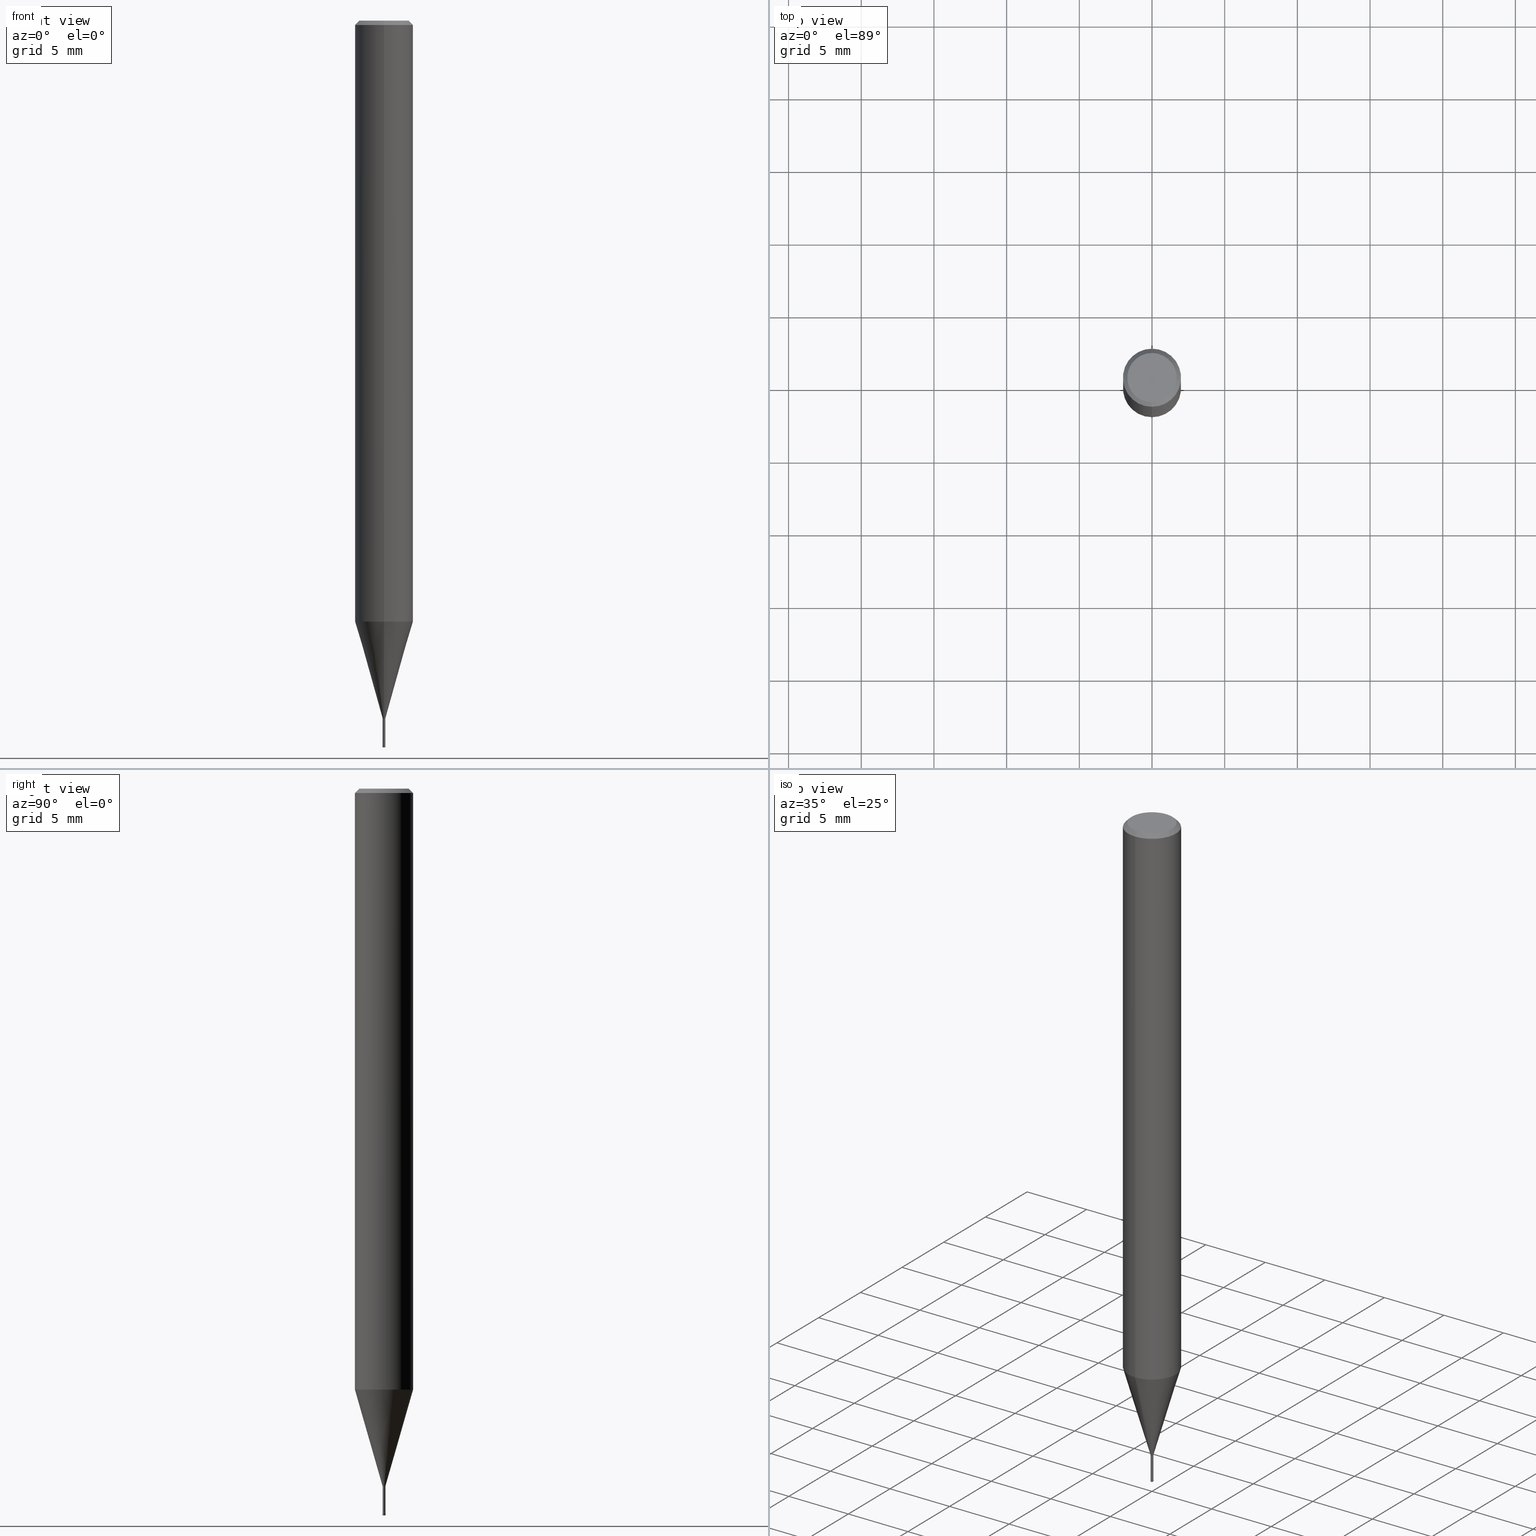
[diagram: canonical four-view strip — front | top / right | iso, engineering-drawing reading convention]
A machine part, canonical four-view strip (front | top / right | iso — engineering-drawing reading convention). The complete STEP part file that produces these views, byte-faithful:
ISO-10303-21;
HEADER;
FILE_DESCRIPTION(('no description'),'unknown implementation level');
FILE_NAME('HLRS4002-002-020-Huellk.stp','  ',('CIMSOURCE GmbH'),('CADClick - KiM GmbH - www.kimweb.de'),'unknown preprocess','ACIS','unknown authorization');
FILE_SCHEMA(('automotive_design'));
ENDSEC;
DATA;
#1=MECHANICAL_DESIGN_GEOMETRIC_PRESENTATION_REPRESENTATION(' ',(#14,#15,#16,#17,#18,#19,#20,#21,#22,#23,#24,#25,#26,#27,#28,#29,#30,#31,#32,#33,#34,#35,#36,#37,#38,#39,#40,#41,#42,#43,#44,#45,#46,#47,#48,#49,#50,#51,#52,#53,#54,#55,#56,#57,#58,#59,#60,#61,#62,#63,#64,#65,#66,#67,#68,#69,#70,#71,#72,#73,#74,#75,#76,#77,#78,#79,#80,#81,#82,#83,#84,#85,#86,#87,#88,#89,#90,#91,#92,#93,#94,#95,#96,#97,#98,#99,#100,#101,#102,#103,#104,#105,#106,#107,#108,#109,#110,#111,#112,#113,#114,#115,#116,#117,#118,#119,#120,#121),#10);
#2=PRODUCT_DEFINITION_CONTEXT('',#122,'design');
#3=APPLICATION_PROTOCOL_DEFINITION('INTERNATIONAL STANDARD','automotive_design',1994,#122);
#4=PRODUCT_CATEGORY_RELATIONSHIP('NONE','NONE',#123,#124);
#5=SHAPE_DEFINITION_REPRESENTATION(#125,#126);
#6=PRODUCT_DEFINITION_CONTEXT('',#127,'design');
#7=APPLICATION_PROTOCOL_DEFINITION('INTERNATIONAL STANDARD','automotive_design',1994,#127);
#8=PRODUCT_CATEGORY_RELATIONSHIP('NONE','NONE',#128,#129);
#9=SHAPE_DEFINITION_REPRESENTATION(#130,#131);
#10= (GEOMETRIC_REPRESENTATION_CONTEXT(3)GLOBAL_UNCERTAINTY_ASSIGNED_CONTEXT((#134))GLOBAL_UNIT_ASSIGNED_CONTEXT((#136,#137,#138))REPRESENTATION_CONTEXT('NONE','WORKSPACE'));
#14=STYLED_ITEM('',(#140),#141);
#15=STYLED_ITEM('',(#142),#143);
#16=STYLED_ITEM('',(#144),#145);
#17=STYLED_ITEM('',(#146),#147);
#18=STYLED_ITEM('',(#148),#149);
#19=STYLED_ITEM('',(#150),#151);
#20=STYLED_ITEM('',(#152),#153);
#21=STYLED_ITEM('',(#154),#155);
#22=STYLED_ITEM('',(#156),#157);
#23=STYLED_ITEM('',(#158),#159);
#24=STYLED_ITEM('',(#160),#161);
#25=STYLED_ITEM('',(#162),#163);
#26=STYLED_ITEM('',(#164),#165);
#27=STYLED_ITEM('',(#166),#167);
#28=STYLED_ITEM('',(#168),#169);
#29=STYLED_ITEM('',(#170),#171);
#30=STYLED_ITEM('',(#172),#173);
#31=STYLED_ITEM('',(#174),#175);
#32=STYLED_ITEM('',(#176),#177);
#33=STYLED_ITEM('',(#178),#179);
#34=STYLED_ITEM('',(#180),#181);
#35=STYLED_ITEM('',(#182),#183);
#36=STYLED_ITEM('',(#184),#185);
#37=STYLED_ITEM('',(#186),#187);
#38=STYLED_ITEM('',(#188),#189);
#39=STYLED_ITEM('',(#190),#191);
#40=STYLED_ITEM('',(#192),#193);
#41=STYLED_ITEM('',(#194),#195);
#42=STYLED_ITEM('',(#196),#197);
#43=STYLED_ITEM('',(#198),#199);
#44=STYLED_ITEM('',(#200),#201);
#45=STYLED_ITEM('',(#202),#203);
#46=STYLED_ITEM('',(#204),#205);
#47=STYLED_ITEM('',(#206),#207);
#48=STYLED_ITEM('',(#208),#209);
#49=STYLED_ITEM('',(#210),#211);
#50=STYLED_ITEM('',(#212),#213);
#51=STYLED_ITEM('',(#214),#215);
#52=STYLED_ITEM('',(#216),#217);
#53=STYLED_ITEM('',(#218),#219);
#54=STYLED_ITEM('',(#220),#221);
#55=STYLED_ITEM('',(#222),#223);
#56=STYLED_ITEM('',(#224),#225);
#57=STYLED_ITEM('',(#226),#227);
#58=STYLED_ITEM('',(#228),#229);
#59=STYLED_ITEM('',(#230),#231);
#60=STYLED_ITEM('',(#232),#233);
#61=STYLED_ITEM('',(#234),#235);
#62=STYLED_ITEM('',(#236),#237);
#63=STYLED_ITEM('',(#238),#239);
#64=STYLED_ITEM('',(#240),#241);
#65=STYLED_ITEM('',(#242),#243);
#66=STYLED_ITEM('',(#244),#245);
#67=STYLED_ITEM('',(#246),#247);
#68=STYLED_ITEM('',(#248),#249);
#69=STYLED_ITEM('',(#250),#251);
#70=STYLED_ITEM('',(#252),#253);
#71=STYLED_ITEM('',(#254),#255);
#72=STYLED_ITEM('',(#256),#257);
#73=STYLED_ITEM('',(#258),#259);
#74=STYLED_ITEM('',(#260),#261);
#75=STYLED_ITEM('',(#262),#263);
#76=STYLED_ITEM('',(#264),#265);
#77=STYLED_ITEM('',(#266),#267);
#78=STYLED_ITEM('',(#268),#269);
#79=STYLED_ITEM('',(#270),#271);
#80=STYLED_ITEM('',(#272),#273);
#81=STYLED_ITEM('',(#274),#275);
#82=STYLED_ITEM('',(#276),#277);
#83=STYLED_ITEM('',(#278),#279);
#84=STYLED_ITEM('',(#280),#281);
#85=STYLED_ITEM('',(#282),#283);
#86=STYLED_ITEM('',(#284),#285);
#87=STYLED_ITEM('',(#286),#287);
#88=STYLED_ITEM('',(#288),#289);
#89=STYLED_ITEM('',(#290),#291);
#90=STYLED_ITEM('',(#292),#293);
#91=STYLED_ITEM('',(#294),#295);
#92=STYLED_ITEM('',(#296),#297);
#93=STYLED_ITEM('',(#298),#299);
#94=STYLED_ITEM('',(#300),#301);
#95=STYLED_ITEM('',(#302),#303);
#96=STYLED_ITEM('',(#304),#305);
#97=STYLED_ITEM('',(#306),#307);
#98=STYLED_ITEM('',(#308),#309);
#99=STYLED_ITEM('',(#310),#311);
#100=STYLED_ITEM('',(#312),#313);
#101=STYLED_ITEM('',(#314),#315);
#102=STYLED_ITEM('',(#316),#317);
#103=STYLED_ITEM('',(#318),#319);
#104=STYLED_ITEM('',(#320),#321);
#105=STYLED_ITEM('',(#322),#323);
#106=STYLED_ITEM('',(#324),#325);
#107=STYLED_ITEM('',(#326),#327);
#108=STYLED_ITEM('',(#328),#329);
#109=STYLED_ITEM('',(#330),#331);
#110=STYLED_ITEM('',(#332),#333);
#111=STYLED_ITEM('',(#334),#335);
#112=STYLED_ITEM('',(#336),#337);
#113=STYLED_ITEM('',(#338),#339);
#114=STYLED_ITEM('',(#340),#341);
#115=STYLED_ITEM('',(#342),#343);
#116=STYLED_ITEM('',(#344),#345);
#117=STYLED_ITEM('',(#346),#347);
#118=STYLED_ITEM('',(#348),#349);
#119=STYLED_ITEM('',(#350),#351);
#120=STYLED_ITEM('',(#352),#353);
#121=STYLED_ITEM('',(#354),#355);
#122=APPLICATION_CONTEXT(' ');
#123=PRODUCT_CATEGORY('part','NONE');
#124=PRODUCT_RELATED_PRODUCT_CATEGORY('detail',' ',(#356));
#125=PRODUCT_DEFINITION_SHAPE('NONE','NONE',#357);
#126=ADVANCED_BREP_SHAPE_REPRESENTATION('1',(#239,#358),#10);
#127=APPLICATION_CONTEXT(' ');
#128=PRODUCT_CATEGORY('part','NONE');
#129=PRODUCT_RELATED_PRODUCT_CATEGORY('detail',' ',(#359));
#130=PRODUCT_DEFINITION_SHAPE('NONE','NONE',#360);
#131=ADVANCED_BREP_SHAPE_REPRESENTATION('2',(#225,#361),#10);
#134=UNCERTAINTY_MEASURE_WITH_UNIT(LENGTH_MEASURE(1.0E-006),#136,'','');
#136= (CONVERSION_BASED_UNIT('MILLIMETRE',#364)LENGTH_UNIT()NAMED_UNIT(#367));
#137= (NAMED_UNIT(#369)PLANE_ANGLE_UNIT()SI_UNIT($,.RADIAN.));
#138= (NAMED_UNIT(#369)SOLID_ANGLE_UNIT()SI_UNIT($,.STERADIAN.));
#140=PRESENTATION_STYLE_ASSIGNMENT((#375));
#141=EDGE_CURVE('',#217,#161,#376,.T.);
#142=PRESENTATION_STYLE_ASSIGNMENT((#377));
#143=EDGE_CURVE('',#195,#315,#378,.T.);
#144=PRESENTATION_STYLE_ASSIGNMENT((#379));
#145=EDGE_CURVE('',#223,#227,#380,.T.);
#146=PRESENTATION_STYLE_ASSIGNMENT((#381));
#147=ADVANCED_FACE('',(#382),#383,.T.);
#148=PRESENTATION_STYLE_ASSIGNMENT((#384));
#149=EDGE_CURVE('',#211,#335,#385,.T.);
#150=PRESENTATION_STYLE_ASSIGNMENT((#386));
#151=EDGE_CURVE('',#215,#155,#387,.T.);
#152=PRESENTATION_STYLE_ASSIGNMENT((#388));
#153=EDGE_CURVE('',#351,#273,#389,.T.);
#154=PRESENTATION_STYLE_ASSIGNMENT((#390));
#155=VERTEX_POINT('',#391);
#156=PRESENTATION_STYLE_ASSIGNMENT((#392));
#157=ADVANCED_FACE('',(#393),#394,.F.);
#158=PRESENTATION_STYLE_ASSIGNMENT((#395));
#159=EDGE_CURVE('',#285,#167,#396,.T.);
#160=PRESENTATION_STYLE_ASSIGNMENT((#397));
#161=VERTEX_POINT('',#398);
#162=PRESENTATION_STYLE_ASSIGNMENT((#399));
#163=EDGE_CURVE('',#353,#255,#400,.T.);
#164=PRESENTATION_STYLE_ASSIGNMENT((#401));
#165=EDGE_CURVE('',#321,#183,#402,.T.);
#166=PRESENTATION_STYLE_ASSIGNMENT((#403));
#167=VERTEX_POINT('',#404);
#168=PRESENTATION_STYLE_ASSIGNMENT((#405));
#169=VERTEX_POINT('',#406);
#170=PRESENTATION_STYLE_ASSIGNMENT((#407));
#171=ADVANCED_FACE('',(#408),#409,.T.);
#172=PRESENTATION_STYLE_ASSIGNMENT((#410));
#173=EDGE_CURVE('',#259,#179,#411,.T.);
#174=PRESENTATION_STYLE_ASSIGNMENT((#412));
#175=VERTEX_POINT('',#413);
#176=PRESENTATION_STYLE_ASSIGNMENT((#414));
#177=ADVANCED_FACE('',(#415),#416,.T.);
#178=PRESENTATION_STYLE_ASSIGNMENT((#417));
#179=VERTEX_POINT('',#418);
#180=PRESENTATION_STYLE_ASSIGNMENT((#419));
#181=ADVANCED_FACE('',(#420,#421),#422,.T.);
#182=PRESENTATION_STYLE_ASSIGNMENT((#423));
#183=VERTEX_POINT('',#424);
#184=PRESENTATION_STYLE_ASSIGNMENT((#425));
#185=EDGE_CURVE('',#167,#215,#426,.T.);
#186=PRESENTATION_STYLE_ASSIGNMENT((#427));
#187=EDGE_CURVE('',#155,#215,#428,.T.);
#188=PRESENTATION_STYLE_ASSIGNMENT((#429));
#189=EDGE_CURVE('',#179,#259,#430,.T.);
#190=PRESENTATION_STYLE_ASSIGNMENT((#431));
#191=ADVANCED_FACE('',(#432),#433,.F.);
#192=PRESENTATION_STYLE_ASSIGNMENT((#434));
#193=EDGE_CURVE('',#255,#223,#435,.T.);
#194=PRESENTATION_STYLE_ASSIGNMENT((#436));
#195=VERTEX_POINT('',#437);
#196=PRESENTATION_STYLE_ASSIGNMENT((#438));
#197=EDGE_CURVE('',#227,#223,#439,.T.);
#198=PRESENTATION_STYLE_ASSIGNMENT((#440));
#199=ADVANCED_FACE('',(#441,#442),#443,.T.);
#200=PRESENTATION_STYLE_ASSIGNMENT((#444));
#201=EDGE_CURVE('',#313,#255,#445,.T.);
#202=PRESENTATION_STYLE_ASSIGNMENT((#446));
#203=ADVANCED_FACE('',(#447),#448,.T.);
#204=PRESENTATION_STYLE_ASSIGNMENT((#449));
#205=VERTEX_POINT('',#450);
#206=PRESENTATION_STYLE_ASSIGNMENT((#451));
#207=VERTEX_POINT('',#452);
#208=PRESENTATION_STYLE_ASSIGNMENT((#453));
#209=ADVANCED_FACE('',(#454),#455,.F.);
#210=PRESENTATION_STYLE_ASSIGNMENT((#456));
#211=VERTEX_POINT('',#457);
#212=PRESENTATION_STYLE_ASSIGNMENT((#458));
#213=EDGE_CURVE('',#353,#175,#459,.T.);
#214=PRESENTATION_STYLE_ASSIGNMENT((#460));
#215=VERTEX_POINT('',#461);
#216=PRESENTATION_STYLE_ASSIGNMENT((#462));
#217=VERTEX_POINT('',#463);
#218=PRESENTATION_STYLE_ASSIGNMENT((#464));
#219=VERTEX_POINT('',#465);
#220=PRESENTATION_STYLE_ASSIGNMENT((#466));
#221=EDGE_CURVE('',#217,#205,#467,.T.);
#222=PRESENTATION_STYLE_ASSIGNMENT((#468));
#223=VERTEX_POINT('',#469);
#224=PRESENTATION_STYLE_ASSIGNMENT((#470));
#225=MANIFOLD_SOLID_BREP('2',#471);
#226=PRESENTATION_STYLE_ASSIGNMENT((#472));
#227=VERTEX_POINT('',#473);
#228=PRESENTATION_STYLE_ASSIGNMENT((#474));
#229=EDGE_CURVE('',#335,#289,#475,.T.);
#230=PRESENTATION_STYLE_ASSIGNMENT((#476));
#231=EDGE_CURVE('',#247,#267,#477,.T.);
#232=PRESENTATION_STYLE_ASSIGNMENT((#478));
#233=VERTEX_POINT('',#479);
#234=PRESENTATION_STYLE_ASSIGNMENT((#480));
#235=EDGE_CURVE('',#227,#313,#481,.T.);
#236=PRESENTATION_STYLE_ASSIGNMENT((#482));
#237=EDGE_CURVE('',#183,#321,#483,.T.);
#238=PRESENTATION_STYLE_ASSIGNMENT((#484));
#239=MANIFOLD_SOLID_BREP('1',#485);
#240=PRESENTATION_STYLE_ASSIGNMENT((#486));
#241=EDGE_CURVE('',#155,#285,#487,.T.);
#242=PRESENTATION_STYLE_ASSIGNMENT((#488));
#243=ADVANCED_FACE('',(#489),#490,.T.);
#244=PRESENTATION_STYLE_ASSIGNMENT((#491));
#245=EDGE_CURVE('',#315,#285,#492,.T.);
#246=PRESENTATION_STYLE_ASSIGNMENT((#493));
#247=VERTEX_POINT('',#494);
#248=PRESENTATION_STYLE_ASSIGNMENT((#495));
#249=EDGE_CURVE('',#205,#179,#496,.T.);
#250=PRESENTATION_STYLE_ASSIGNMENT((#497));
#251=EDGE_CURVE('',#233,#289,#498,.T.);
#252=PRESENTATION_STYLE_ASSIGNMENT((#499));
#253=ADVANCED_FACE('',(#500),#501,.T.);
#254=PRESENTATION_STYLE_ASSIGNMENT((#502));
#255=VERTEX_POINT('',#503);
#256=PRESENTATION_STYLE_ASSIGNMENT((#504));
#257=ADVANCED_FACE('',(#505),#506,.T.);
#258=PRESENTATION_STYLE_ASSIGNMENT((#507));
#259=VERTEX_POINT('',#508);
#260=PRESENTATION_STYLE_ASSIGNMENT((#509));
#261=ADVANCED_FACE('',(#510),#511,.T.);
#262=PRESENTATION_STYLE_ASSIGNMENT((#512));
#263=ADVANCED_FACE('',(#513),#514,.T.);
#264=PRESENTATION_STYLE_ASSIGNMENT((#515));
#265=EDGE_CURVE('',#321,#247,#516,.T.);
#266=PRESENTATION_STYLE_ASSIGNMENT((#517));
#267=VERTEX_POINT('',#518);
#268=PRESENTATION_STYLE_ASSIGNMENT((#519));
#269=EDGE_CURVE('',#267,#169,#520,.T.);
#270=PRESENTATION_STYLE_ASSIGNMENT((#521));
#271=EDGE_CURVE('',#289,#233,#522,.T.);
#272=PRESENTATION_STYLE_ASSIGNMENT((#523));
#273=VERTEX_POINT('',#524);
#274=PRESENTATION_STYLE_ASSIGNMENT((#525));
#275=EDGE_CURVE('',#315,#195,#526,.T.);
#276=PRESENTATION_STYLE_ASSIGNMENT((#527));
#277=EDGE_CURVE('',#167,#195,#528,.T.);
#278=PRESENTATION_STYLE_ASSIGNMENT((#529));
#279=EDGE_CURVE('',#335,#211,#530,.T.);
#280=PRESENTATION_STYLE_ASSIGNMENT((#531));
#281=ADVANCED_FACE('',(#532),#533,.T.);
#282=PRESENTATION_STYLE_ASSIGNMENT((#534));
#283=ADVANCED_FACE('',(#535),#536,.F.);
#284=PRESENTATION_STYLE_ASSIGNMENT((#537));
#285=VERTEX_POINT('',#538);
#286=PRESENTATION_STYLE_ASSIGNMENT((#539));
#287=ADVANCED_FACE('',(#540,#541),#542,.T.);
#288=PRESENTATION_STYLE_ASSIGNMENT((#543));
#289=VERTEX_POINT('',#544);
#290=PRESENTATION_STYLE_ASSIGNMENT((#545));
#291=EDGE_CURVE('',#233,#211,#546,.T.);
#292=PRESENTATION_STYLE_ASSIGNMENT((#547));
#293=ADVANCED_FACE('',(#548),#549,.T.);
#294=PRESENTATION_STYLE_ASSIGNMENT((#550));
#295=EDGE_CURVE('',#205,#219,#551,.T.);
#296=PRESENTATION_STYLE_ASSIGNMENT((#552));
#297=EDGE_CURVE('',#175,#353,#553,.T.);
#298=PRESENTATION_STYLE_ASSIGNMENT((#554));
#299=EDGE_CURVE('',#161,#217,#555,.T.);
#300=PRESENTATION_STYLE_ASSIGNMENT((#556));
#301=EDGE_CURVE('',#219,#205,#557,.T.);
#302=PRESENTATION_STYLE_ASSIGNMENT((#558));
#303=EDGE_CURVE('',#207,#183,#559,.T.);
#304=PRESENTATION_STYLE_ASSIGNMENT((#560));
#305=ADVANCED_FACE('',(#561,#562),#563,.T.);
#306=PRESENTATION_STYLE_ASSIGNMENT((#564));
#307=ADVANCED_FACE('',(#565),#566,.T.);
#308=PRESENTATION_STYLE_ASSIGNMENT((#567));
#309=ADVANCED_FACE('',(#568),#569,.T.);
#310=PRESENTATION_STYLE_ASSIGNMENT((#570));
#311=ADVANCED_FACE('',(#571),#572,.T.);
#312=PRESENTATION_STYLE_ASSIGNMENT((#573));
#313=VERTEX_POINT('',#574);
#314=PRESENTATION_STYLE_ASSIGNMENT((#575));
#315=VERTEX_POINT('',#576);
#316=PRESENTATION_STYLE_ASSIGNMENT((#577));
#317=EDGE_CURVE('',#219,#161,#578,.T.);
#318=PRESENTATION_STYLE_ASSIGNMENT((#579));
#319=EDGE_CURVE('',#255,#313,#580,.T.);
#320=PRESENTATION_STYLE_ASSIGNMENT((#581));
#321=VERTEX_POINT('',#582);
#322=PRESENTATION_STYLE_ASSIGNMENT((#583));
#323=EDGE_CURVE('',#169,#267,#584,.T.);
#324=PRESENTATION_STYLE_ASSIGNMENT((#585));
#325=EDGE_CURVE('',#273,#351,#586,.T.);
#326=PRESENTATION_STYLE_ASSIGNMENT((#587));
#327=ADVANCED_FACE('',(#588),#589,.T.);
#328=PRESENTATION_STYLE_ASSIGNMENT((#590));
#329=EDGE_CURVE('',#211,#273,#591,.T.);
#330=PRESENTATION_STYLE_ASSIGNMENT((#592));
#331=EDGE_CURVE('',#259,#219,#593,.T.);
#332=PRESENTATION_STYLE_ASSIGNMENT((#594));
#333=EDGE_CURVE('',#247,#207,#595,.T.);
#334=PRESENTATION_STYLE_ASSIGNMENT((#596));
#335=VERTEX_POINT('',#597);
#336=PRESENTATION_STYLE_ASSIGNMENT((#598));
#337=ADVANCED_FACE('',(#599),#600,.T.);
#338=PRESENTATION_STYLE_ASSIGNMENT((#601));
#339=ADVANCED_FACE('',(#602),#603,.T.);
#340=PRESENTATION_STYLE_ASSIGNMENT((#604));
#341=EDGE_CURVE('',#313,#175,#605,.T.);
#342=PRESENTATION_STYLE_ASSIGNMENT((#606));
#343=ADVANCED_FACE('',(#607),#608,.T.);
#344=PRESENTATION_STYLE_ASSIGNMENT((#609));
#345=EDGE_CURVE('',#167,#285,#610,.T.);
#346=PRESENTATION_STYLE_ASSIGNMENT((#611));
#347=EDGE_CURVE('',#169,#207,#612,.T.);
#348=PRESENTATION_STYLE_ASSIGNMENT((#613));
#349=EDGE_CURVE('',#207,#247,#614,.T.);
#350=PRESENTATION_STYLE_ASSIGNMENT((#615));
#351=VERTEX_POINT('',#616);
#352=PRESENTATION_STYLE_ASSIGNMENT((#617));
#353=VERTEX_POINT('',#618);
#354=PRESENTATION_STYLE_ASSIGNMENT((#619));
#355=EDGE_CURVE('',#351,#335,#620,.T.);
#356=PRODUCT('1','1','PART-1-DESC',(#621));
#357=PRODUCT_DEFINITION('NONE','NONE',#622,#2);
#358=AXIS2_PLACEMENT_3D('',#623,#624,#625);
#359=PRODUCT('2','2','PART-2-DESC',(#626));
#360=PRODUCT_DEFINITION('NONE','NONE',#627,#6);
#361=AXIS2_PLACEMENT_3D('',#628,#629,#630);
#364=LENGTH_MEASURE_WITH_UNIT(LENGTH_MEASURE(1.0),#631);
#367=DIMENSIONAL_EXPONENTS(1.0,0.0,0.0,0.0,0.0,0.0,0.0);
#369=DIMENSIONAL_EXPONENTS(0.0,0.0,0.0,0.0,0.0,0.0,0.0);
#375=CURVE_STYLE('',#632,POSITIVE_LENGTH_MEASURE(1.0E-006),#633);
#376=CIRCLE('',#634,1.99995);
#377=CURVE_STYLE('',#635,POSITIVE_LENGTH_MEASURE(1.0E-006),#636);
#378=CIRCLE('',#637,0.0999);
#379=CURVE_STYLE('',#638,POSITIVE_LENGTH_MEASURE(1.0E-006),#639);
#380=CIRCLE('',#640,2.0);
#381=SURFACE_STYLE_USAGE(.BOTH.,#641);
#382=FACE_OUTER_BOUND('',#642,.T.);
#383=CONICAL_SURFACE('',#643,1.85,0.785398163397453);
#384=CURVE_STYLE('',#644,POSITIVE_LENGTH_MEASURE(1.0E-006),#645);
#385=CIRCLE('',#646,0.045);
#386=CURVE_STYLE('',#647,POSITIVE_LENGTH_MEASURE(1.0E-006),#648);
#387=CIRCLE('',#649,0.08);
#388=CURVE_STYLE('',#650,POSITIVE_LENGTH_MEASURE(1.0E-006),#651);
#389=CIRCLE('',#652,0.09495);
#390=POINT_STYLE(' ',#653,POSITIVE_LENGTH_MEASURE(1.0E-006),#654);
#391=CARTESIAN_POINT('',(0.0,0.08,-49.99));
#392=SURFACE_STYLE_USAGE(.BOTH.,#655);
#393=FACE_OUTER_BOUND('',#656,.T.);
#394=CYLINDRICAL_SURFACE('',#657,0.045);
#395=CURVE_STYLE('',#658,POSITIVE_LENGTH_MEASURE(1.0E-006),#659);
#396=CIRCLE('',#660,0.1);
#397=POINT_STYLE(' ',#661,POSITIVE_LENGTH_MEASURE(1.0E-006),#662);
#398=CARTESIAN_POINT('',(2.44915147732706E-016,-1.99995,-41.338));
#399=CURVE_STYLE('',#663,POSITIVE_LENGTH_MEASURE(1.0E-006),#664);
#400=LINE('',#665,#666);
#401=CURVE_STYLE('',#667,POSITIVE_LENGTH_MEASURE(1.0E-006),#668);
#402=CIRCLE('',#669,0.045);
#403=POINT_STYLE(' ',#670,POSITIVE_LENGTH_MEASURE(1.0E-006),#671);
#404=CARTESIAN_POINT('',(1.22460635382238E-017,-0.1,-49.97));
#405=POINT_STYLE(' ',#672,POSITIVE_LENGTH_MEASURE(1.0E-006),#673);
#406=CARTESIAN_POINT('',(0.0,0.0949,-49.87));
#407=SURFACE_STYLE_USAGE(.BOTH.,#674);
#408=FACE_OUTER_BOUND('',#675,.T.);
#409=CONICAL_SURFACE('',#676,0.069975,1.37320827416588);
#410=CURVE_STYLE('',#677,POSITIVE_LENGTH_MEASURE(1.0E-006),#678);
#411=CIRCLE('',#679,0.09245);
#412=POINT_STYLE(' ',#680,POSITIVE_LENGTH_MEASURE(1.0E-006),#681);
#413=CARTESIAN_POINT('',(2.08183080149804E-016,-1.7,0.00999999999999801));
#414=SURFACE_STYLE_USAGE(.BOTH.,#682);
#415=FACE_OUTER_BOUND('',#683,.T.);
#416=CYLINDRICAL_SURFACE('',#684,0.045);
#417=POINT_STYLE(' ',#685,POSITIVE_LENGTH_MEASURE(1.0E-006),#686);
#418=CARTESIAN_POINT('',(0.0,0.09245,-49.87));
#419=SURFACE_STYLE_USAGE(.BOTH.,#687);
#420=FACE_OUTER_BOUND('',#688,.T.);
#421=FACE_BOUND('',#689,.T.);
#422=PLANE('',#690);
#423=POINT_STYLE(' ',#691,POSITIVE_LENGTH_MEASURE(1.0E-006),#692);
#424=CARTESIAN_POINT('',(0.0,0.045,-49.99));
#425=CURVE_STYLE('',#693,POSITIVE_LENGTH_MEASURE(1.0E-006),#694);
#426=CIRCLE('',#695,0.02);
#427=CURVE_STYLE('',#696,POSITIVE_LENGTH_MEASURE(1.0E-006),#697);
#428=CIRCLE('',#698,0.08);
#429=CURVE_STYLE('',#699,POSITIVE_LENGTH_MEASURE(1.0E-006),#700);
#430=CIRCLE('',#701,0.09245);
#431=SURFACE_STYLE_USAGE(.BOTH.,#702);
#432=FACE_OUTER_BOUND('',#703,.T.);
#433=CONICAL_SURFACE('',#704,0.06995,1.37301541050937);
#434=CURVE_STYLE('',#705,POSITIVE_LENGTH_MEASURE(1.0E-006),#706);
#435=LINE('',#707,#708);
#436=POINT_STYLE(' ',#709,POSITIVE_LENGTH_MEASURE(1.0E-006),#710);
#437=CARTESIAN_POINT('',(1.22338174746856E-017,-0.0999,-49.87));
#438=CURVE_STYLE('',#711,POSITIVE_LENGTH_MEASURE(1.0E-006),#712);
#439=CIRCLE('',#713,2.0);
#440=SURFACE_STYLE_USAGE(.BOTH.,#714);
#441=FACE_BOUND('',#715,.T.);
#442=FACE_OUTER_BOUND('',#716,.T.);
#443=PLANE('',#717);
#444=CURVE_STYLE('',#718,POSITIVE_LENGTH_MEASURE(1.0E-006),#719);
#445=CIRCLE('',#720,2.0);
#446=SURFACE_STYLE_USAGE(.BOTH.,#721);
#447=FACE_OUTER_BOUND('',#722,.T.);
#448=CYLINDRICAL_SURFACE('',#723,2.0);
#449=POINT_STYLE(' ',#724,POSITIVE_LENGTH_MEASURE(1.0E-006),#725);
#450=CARTESIAN_POINT('',(0.0,0.09245,-47.99));
#451=POINT_STYLE(' ',#726,POSITIVE_LENGTH_MEASURE(1.0E-006),#727);
#452=CARTESIAN_POINT('',(0.0,0.045,-49.88));
#453=SURFACE_STYLE_USAGE(.BOTH.,#728);
#454=FACE_OUTER_BOUND('',#729,.T.);
#455=CONICAL_SURFACE('',#730,0.06995,1.37301541050937);
#456=POINT_STYLE(' ',#731,POSITIVE_LENGTH_MEASURE(1.0E-006),#732);
#457=CARTESIAN_POINT('',(5.5107285922007E-018,-0.045,-49.88));
#458=CURVE_STYLE('',#733,POSITIVE_LENGTH_MEASURE(1.0E-006),#734);
#459=CIRCLE('',#735,1.7);
#460=POINT_STYLE(' ',#736,POSITIVE_LENGTH_MEASURE(1.0E-006),#737);
#461=CARTESIAN_POINT('',(9.79685083057902E-018,-0.08,-49.99));
#462=POINT_STYLE(' ',#738,POSITIVE_LENGTH_MEASURE(1.0E-006),#739);
#463=CARTESIAN_POINT('',(0.0,1.99995,-41.338));
#464=POINT_STYLE(' ',#740,POSITIVE_LENGTH_MEASURE(1.0E-006),#741);
#465=CARTESIAN_POINT('',(1.13214857410879E-017,-0.09245,-47.99));
#466=CURVE_STYLE('',#742,POSITIVE_LENGTH_MEASURE(1.0E-006),#743);
#467=LINE('',#744,#745);
#468=POINT_STYLE(' ',#746,POSITIVE_LENGTH_MEASURE(1.0E-006),#747);
#469=CARTESIAN_POINT('',(0.0,2.0,-41.338));
#470=SURFACE_STYLE_USAGE(.BOTH.,#748);
#471=CLOSED_SHELL('',(#283,#311,#263,#209,#191,#305,#337,#257,#199,#157));
#472=POINT_STYLE(' ',#749,POSITIVE_LENGTH_MEASURE(1.0E-006),#750);
#473=CARTESIAN_POINT('',(2.44921270764475E-016,-2.0,-41.338));
#474=CURVE_STYLE('',#751,POSITIVE_LENGTH_MEASURE(1.0E-006),#752);
#475=LINE('',#753,#754);
#476=CURVE_STYLE('',#755,POSITIVE_LENGTH_MEASURE(1.0E-006),#756);
#477=LINE('',#757,#758);
#478=POINT_STYLE(' ',#759,POSITIVE_LENGTH_MEASURE(1.0E-006),#760);
#479=CARTESIAN_POINT('',(5.5107285922007E-018,-0.045,-49.96));
#480=CURVE_STYLE('',#761,POSITIVE_LENGTH_MEASURE(1.0E-006),#762);
#481=LINE('',#763,#764);
#482=CURVE_STYLE('',#765,POSITIVE_LENGTH_MEASURE(1.0E-006),#766);
#483=CIRCLE('',#767,0.045);
#484=SURFACE_STYLE_USAGE(.BOTH.,#768);
#485=CLOSED_SHELL('',(#177,#171,#253,#243,#203,#147,#181,#293,#327,#339,#261,#307,#287,#309,#343,#281));
#486=CURVE_STYLE('',#769,POSITIVE_LENGTH_MEASURE(1.0E-006),#770);
#487=CIRCLE('',#771,0.02);
#488=SURFACE_STYLE_USAGE(.BOTH.,#772);
#489=FACE_OUTER_BOUND('',#773,.T.);
#490=CONICAL_SURFACE('',#774,1.0462,0.279262361421134);
#491=CURVE_STYLE('',#775,POSITIVE_LENGTH_MEASURE(1.0E-006),#776);
#492=LINE('',#777,#778);
#493=POINT_STYLE(' ',#779,POSITIVE_LENGTH_MEASURE(1.0E-006),#780);
#494=CARTESIAN_POINT('',(5.5107285922007E-018,-0.045,-49.88));
#495=CURVE_STYLE('',#781,POSITIVE_LENGTH_MEASURE(1.0E-006),#782);
#496=LINE('',#783,#784);
#497=CURVE_STYLE('',#785,POSITIVE_LENGTH_MEASURE(1.0E-006),#786);
#498=CIRCLE('',#787,0.045);
#499=SURFACE_STYLE_USAGE(.BOTH.,#788);
#500=FACE_OUTER_BOUND('',#789,.T.);
#501=CYLINDRICAL_SURFACE('',#790,0.09245);
#502=POINT_STYLE(' ',#791,POSITIVE_LENGTH_MEASURE(1.0E-006),#792);
#503=CARTESIAN_POINT('',(0.0,2.0,-0.289999999999999));
#504=SURFACE_STYLE_USAGE(.BOTH.,#793);
#505=FACE_OUTER_BOUND('',#794,.T.);
#506=TOROIDAL_SURFACE('',#795,0.08,0.02);
#507=POINT_STYLE(' ',#796,POSITIVE_LENGTH_MEASURE(1.0E-006),#797);
#508=CARTESIAN_POINT('',(1.13214857410879E-017,-0.09245,-49.87));
#509=SURFACE_STYLE_USAGE(.BOTH.,#798);
#510=FACE_OUTER_BOUND('',#799,.T.);
#511=CONICAL_SURFACE('',#800,1.0462,0.279262361421134);
#512=SURFACE_STYLE_USAGE(.BOTH.,#801);
#513=FACE_OUTER_BOUND('',#802,.T.);
#514=CONICAL_SURFACE('',#803,0.09995,0.000999999666666895);
#515=CURVE_STYLE('',#804,POSITIVE_LENGTH_MEASURE(1.0E-006),#805);
#516=LINE('',#806,#807);
#517=POINT_STYLE(' ',#808,POSITIVE_LENGTH_MEASURE(1.0E-006),#809);
#518=CARTESIAN_POINT('',(1.16215142977744E-017,-0.0949,-49.87));
#519=CURVE_STYLE('',#810,POSITIVE_LENGTH_MEASURE(1.0E-006),#811);
#520=CIRCLE('',#812,0.0949);
#521=CURVE_STYLE('',#813,POSITIVE_LENGTH_MEASURE(1.0E-006),#814);
#522=CIRCLE('',#815,0.045);
#523=POINT_STYLE(' ',#816,POSITIVE_LENGTH_MEASURE(1.0E-006),#817);
#524=CARTESIAN_POINT('',(1.16276373295435E-017,-0.09495,-49.87));
#525=CURVE_STYLE('',#818,POSITIVE_LENGTH_MEASURE(1.0E-006),#819);
#526=CIRCLE('',#820,0.0999);
#527=CURVE_STYLE('',#821,POSITIVE_LENGTH_MEASURE(1.0E-006),#822);
#528=LINE('',#823,#824);
#529=CURVE_STYLE('',#825,POSITIVE_LENGTH_MEASURE(1.0E-006),#826);
#530=CIRCLE('',#827,0.045);
#531=SURFACE_STYLE_USAGE(.BOTH.,#828);
#532=FACE_OUTER_BOUND('',#829,.T.);
#533=PLANE('',#830);
#534=SURFACE_STYLE_USAGE(.BOTH.,#831);
#535=FACE_OUTER_BOUND('',#832,.T.);
#536=CYLINDRICAL_SURFACE('',#833,0.045);
#537=POINT_STYLE(' ',#834,POSITIVE_LENGTH_MEASURE(1.0E-006),#835);
#538=CARTESIAN_POINT('',(0.0,0.1,-49.97));
#539=SURFACE_STYLE_USAGE(.BOTH.,#836);
#540=FACE_OUTER_BOUND('',#837,.T.);
#541=FACE_BOUND('',#838,.T.);
#542=PLANE('',#839);
#543=POINT_STYLE(' ',#840,POSITIVE_LENGTH_MEASURE(1.0E-006),#841);
#544=CARTESIAN_POINT('',(0.0,0.045,-49.96));
#545=CURVE_STYLE('',#842,POSITIVE_LENGTH_MEASURE(1.0E-006),#843);
#546=LINE('',#844,#845);
#547=SURFACE_STYLE_USAGE(.BOTH.,#846);
#548=FACE_OUTER_BOUND('',#847,.T.);
#549=PLANE('',#848);
#550=CURVE_STYLE('',#849,POSITIVE_LENGTH_MEASURE(1.0E-006),#850);
#551=CIRCLE('',#851,0.09245);
#552=CURVE_STYLE('',#852,POSITIVE_LENGTH_MEASURE(1.0E-006),#853);
#553=CIRCLE('',#854,1.7);
#554=CURVE_STYLE('',#855,POSITIVE_LENGTH_MEASURE(1.0E-006),#856);
#555=CIRCLE('',#857,1.99995);
#556=CURVE_STYLE('',#858,POSITIVE_LENGTH_MEASURE(1.0E-006),#859);
#557=CIRCLE('',#860,0.09245);
#558=CURVE_STYLE('',#861,POSITIVE_LENGTH_MEASURE(1.0E-006),#862);
#559=LINE('',#863,#864);
#560=SURFACE_STYLE_USAGE(.BOTH.,#865);
#561=FACE_OUTER_BOUND('',#866,.T.);
#562=FACE_BOUND('',#867,.T.);
#563=PLANE('',#868);
#564=SURFACE_STYLE_USAGE(.BOTH.,#869);
#565=FACE_OUTER_BOUND('',#870,.T.);
#566=CYLINDRICAL_SURFACE('',#871,0.09245);
#567=SURFACE_STYLE_USAGE(.BOTH.,#872);
#568=FACE_OUTER_BOUND('',#873,.T.);
#569=CONICAL_SURFACE('',#874,0.069975,1.37320827416588);
#570=SURFACE_STYLE_USAGE(.BOTH.,#875);
#571=FACE_OUTER_BOUND('',#876,.T.);
#572=TOROIDAL_SURFACE('',#877,0.08,0.02);
#573=POINT_STYLE(' ',#878,POSITIVE_LENGTH_MEASURE(1.0E-006),#879);
#574=CARTESIAN_POINT('',(2.44921270764475E-016,-2.0,-0.289999999999999));
#575=POINT_STYLE(' ',#880,POSITIVE_LENGTH_MEASURE(1.0E-006),#881);
#576=CARTESIAN_POINT('',(0.0,0.0999,-49.87));
#577=CURVE_STYLE('',#882,POSITIVE_LENGTH_MEASURE(1.0E-006),#883);
#578=LINE('',#884,#885);
#579=CURVE_STYLE('',#886,POSITIVE_LENGTH_MEASURE(1.0E-006),#887);
#580=CIRCLE('',#888,2.0);
#581=POINT_STYLE(' ',#889,POSITIVE_LENGTH_MEASURE(1.0E-006),#890);
#582=CARTESIAN_POINT('',(5.5107285922007E-018,-0.045,-49.99));
#583=CURVE_STYLE('',#891,POSITIVE_LENGTH_MEASURE(1.0E-006),#892);
#584=CIRCLE('',#893,0.0949);
#585=CURVE_STYLE('',#894,POSITIVE_LENGTH_MEASURE(1.0E-006),#895);
#586=CIRCLE('',#896,0.09495);
#587=SURFACE_STYLE_USAGE(.BOTH.,#897);
#588=FACE_OUTER_BOUND('',#898,.T.);
#589=CONICAL_SURFACE('',#899,1.85,0.785398163397453);
#590=CURVE_STYLE('',#900,POSITIVE_LENGTH_MEASURE(1.0E-006),#901);
#591=LINE('',#902,#903);
#592=CURVE_STYLE('',#904,POSITIVE_LENGTH_MEASURE(1.0E-006),#905);
#593=LINE('',#906,#907);
#594=CURVE_STYLE('',#908,POSITIVE_LENGTH_MEASURE(1.0E-006),#909);
#595=CIRCLE('',#910,0.045);
#596=POINT_STYLE(' ',#911,POSITIVE_LENGTH_MEASURE(1.0E-006),#912);
#597=CARTESIAN_POINT('',(0.0,0.045,-49.88));
#598=SURFACE_STYLE_USAGE(.BOTH.,#913);
#599=FACE_OUTER_BOUND('',#914,.T.);
#600=CONICAL_SURFACE('',#915,0.09995,0.000999999666666895);
#601=SURFACE_STYLE_USAGE(.BOTH.,#916);
#602=FACE_OUTER_BOUND('',#917,.T.);
#603=CYLINDRICAL_SURFACE('',#918,2.0);
#604=CURVE_STYLE('',#919,POSITIVE_LENGTH_MEASURE(1.0E-006),#920);
#605=LINE('',#921,#922);
#606=SURFACE_STYLE_USAGE(.BOTH.,#923);
#607=FACE_OUTER_BOUND('',#924,.T.);
#608=CYLINDRICAL_SURFACE('',#925,0.045);
#609=CURVE_STYLE('',#926,POSITIVE_LENGTH_MEASURE(1.0E-006),#927);
#610=CIRCLE('',#928,0.1);
#611=CURVE_STYLE('',#929,POSITIVE_LENGTH_MEASURE(1.0E-006),#930);
#612=LINE('',#931,#932);
#613=CURVE_STYLE('',#933,POSITIVE_LENGTH_MEASURE(1.0E-006),#934);
#614=CIRCLE('',#935,0.045);
#615=POINT_STYLE(' ',#936,POSITIVE_LENGTH_MEASURE(1.0E-006),#937);
#616=CARTESIAN_POINT('',(0.0,0.09495,-49.87));
#617=POINT_STYLE(' ',#938,POSITIVE_LENGTH_MEASURE(1.0E-006),#939);
#618=CARTESIAN_POINT('',(0.0,1.7,0.00999999999999801));
#619=CURVE_STYLE('',#940,POSITIVE_LENGTH_MEASURE(1.0E-006),#941);
#620=LINE('',#942,#943);
#621=PRODUCT_CONTEXT('',#122,'mechanical');
#622=PRODUCT_DEFINITION_FORMATION_WITH_SPECIFIED_SOURCE(' ','NONE',#356,.NOT_KNOWN.);
#623=CARTESIAN_POINT('',(0.0,0.0,0.0));
#624=DIRECTION('',(0.0,0.0,1.0));
#625=DIRECTION('',(1.0,0.0,0.0));
#626=PRODUCT_CONTEXT('',#127,'mechanical');
#627=PRODUCT_DEFINITION_FORMATION_WITH_SPECIFIED_SOURCE(' ','NONE',#359,.NOT_KNOWN.);
#628=CARTESIAN_POINT('',(0.0,0.0,0.0));
#629=DIRECTION('',(0.0,0.0,1.0));
#630=DIRECTION('',(1.0,0.0,0.0));
#631= (NAMED_UNIT(#367)LENGTH_UNIT()SI_UNIT(.MILLI.,.METRE.));
#632=DRAUGHTING_PRE_DEFINED_CURVE_FONT('continuous');
#633=COLOUR_RGB('',0.498039215803146,0.498039215803146,0.498039215803146);
#634=AXIS2_PLACEMENT_3D('',#945,#946,#947);
#635=DRAUGHTING_PRE_DEFINED_CURVE_FONT('continuous');
#636=COLOUR_RGB('',0.800000011920929,0.800000011920929,0.800000011920929);
#637=AXIS2_PLACEMENT_3D('',#948,#949,#950);
#638=DRAUGHTING_PRE_DEFINED_CURVE_FONT('continuous');
#639=COLOUR_RGB('',0.498039215803146,0.498039215803146,0.498039215803146);
#640=AXIS2_PLACEMENT_3D('',#951,#952,#953);
#641=SURFACE_SIDE_STYLE('',(#954));
#642=EDGE_LOOP('',(#955,#956,#957,#958));
#643=AXIS2_PLACEMENT_3D('',#959,#960,#961);
#644=DRAUGHTING_PRE_DEFINED_CURVE_FONT('continuous');
#645=COLOUR_RGB('',0.498039215803146,0.498039215803146,0.498039215803146);
#646=AXIS2_PLACEMENT_3D('',#962,#963,#964);
#647=DRAUGHTING_PRE_DEFINED_CURVE_FONT('continuous');
#648=COLOUR_RGB('',0.800000011920929,0.800000011920929,0.800000011920929);
#649=AXIS2_PLACEMENT_3D('',#965,#966,#967);
#650=DRAUGHTING_PRE_DEFINED_CURVE_FONT('continuous');
#651=COLOUR_RGB('',0.498039215803146,0.498039215803146,0.498039215803146);
#652=AXIS2_PLACEMENT_3D('',#968,#969,#970);
#653=PRE_DEFINED_MARKER('');
#654=COLOUR_RGB('',0.800000011920929,0.800000011920929,0.800000011920929);
#655=SURFACE_SIDE_STYLE('',(#971));
#656=EDGE_LOOP('',(#972,#973,#974,#975));
#657=AXIS2_PLACEMENT_3D('',#976,#977,#978);
#658=DRAUGHTING_PRE_DEFINED_CURVE_FONT('continuous');
#659=COLOUR_RGB('',0.800000011920929,0.800000011920929,0.800000011920929);
#660=AXIS2_PLACEMENT_3D('',#979,#980,#981);
#661=PRE_DEFINED_MARKER('');
#662=COLOUR_RGB('',0.498039215803146,0.498039215803146,0.498039215803146);
#663=DRAUGHTING_PRE_DEFINED_CURVE_FONT('continuous');
#664=COLOUR_RGB('',0.498039215803146,0.498039215803146,0.498039215803146);
#665=CARTESIAN_POINT('',(-2.2655217545714E-016,1.85,-0.140000000000001));
#666=VECTOR('',#982,1.0);
#667=DRAUGHTING_PRE_DEFINED_CURVE_FONT('continuous');
#668=COLOUR_RGB('',0.800000011920929,0.800000011920929,0.800000011920929);
#669=AXIS2_PLACEMENT_3D('',#983,#984,#985);
#670=PRE_DEFINED_MARKER('');
#671=COLOUR_RGB('',0.800000011920929,0.800000011920929,0.800000011920929);
#672=PRE_DEFINED_MARKER('');
#673=COLOUR_RGB('',0.800000011920929,0.800000011920929,0.800000011920929);
#674=SURFACE_SIDE_STYLE('',(#986));
#675=EDGE_LOOP('',(#987,#988,#989,#990));
#676=AXIS2_PLACEMENT_3D('',#991,#992,#993);
#677=DRAUGHTING_PRE_DEFINED_CURVE_FONT('continuous');
#678=COLOUR_RGB('',0.498039215803146,0.498039215803146,0.498039215803146);
#679=AXIS2_PLACEMENT_3D('',#994,#995,#996);
#680=PRE_DEFINED_MARKER('');
#681=COLOUR_RGB('',0.498039215803146,0.498039215803146,0.498039215803146);
#682=SURFACE_SIDE_STYLE('',(#997));
#683=EDGE_LOOP('',(#998,#999,#1000,#1001));
#684=AXIS2_PLACEMENT_3D('',#1002,#1003,#1004);
#685=PRE_DEFINED_MARKER('');
#686=COLOUR_RGB('',0.498039215803146,0.498039215803146,0.498039215803146);
#687=SURFACE_SIDE_STYLE('',(#1005));
#688=EDGE_LOOP('',(#1006,#1007));
#689=EDGE_LOOP('',(#1008,#1009));
#690=AXIS2_PLACEMENT_3D('',#1010,#1011,#1012);
#691=PRE_DEFINED_MARKER('');
#692=COLOUR_RGB('',0.800000011920929,0.800000011920929,0.800000011920929);
#693=DRAUGHTING_PRE_DEFINED_CURVE_FONT('continuous');
#694=COLOUR_RGB('',0.800000011920929,0.800000011920929,0.800000011920929);
#695=AXIS2_PLACEMENT_3D('',#1013,#1014,#1015);
#696=DRAUGHTING_PRE_DEFINED_CURVE_FONT('continuous');
#697=COLOUR_RGB('',0.800000011920929,0.800000011920929,0.800000011920929);
#698=AXIS2_PLACEMENT_3D('',#1016,#1017,#1018);
#699=DRAUGHTING_PRE_DEFINED_CURVE_FONT('continuous');
#700=COLOUR_RGB('',0.498039215803146,0.498039215803146,0.498039215803146);
#701=AXIS2_PLACEMENT_3D('',#1019,#1020,#1021);
#702=SURFACE_SIDE_STYLE('',(#1022));
#703=EDGE_LOOP('',(#1023,#1024,#1025,#1026));
#704=AXIS2_PLACEMENT_3D('',#1027,#1028,#1029);
#705=DRAUGHTING_PRE_DEFINED_CURVE_FONT('continuous');
#706=COLOUR_RGB('',0.498039215803146,0.498039215803146,0.498039215803146);
#707=CARTESIAN_POINT('',(-2.44921270764475E-016,2.0,-20.814));
#708=VECTOR('',#1030,1.0);
#709=PRE_DEFINED_MARKER('');
#710=COLOUR_RGB('',0.800000011920929,0.800000011920929,0.800000011920929);
#711=DRAUGHTING_PRE_DEFINED_CURVE_FONT('continuous');
#712=COLOUR_RGB('',0.498039215803146,0.498039215803146,0.498039215803146);
#713=AXIS2_PLACEMENT_3D('',#1031,#1032,#1033);
#714=SURFACE_SIDE_STYLE('',(#1034));
#715=EDGE_LOOP('',(#1035,#1036));
#716=EDGE_LOOP('',(#1037,#1038));
#717=AXIS2_PLACEMENT_3D('',#1039,#1040,#1041);
#718=DRAUGHTING_PRE_DEFINED_CURVE_FONT('continuous');
#719=COLOUR_RGB('',0.498039215803146,0.498039215803146,0.498039215803146);
#720=AXIS2_PLACEMENT_3D('',#1042,#1043,#1044);
#721=SURFACE_SIDE_STYLE('',(#1045));
#722=EDGE_LOOP('',(#1046,#1047,#1048,#1049));
#723=AXIS2_PLACEMENT_3D('',#1050,#1051,#1052);
#724=PRE_DEFINED_MARKER('');
#725=COLOUR_RGB('',0.498039215803146,0.498039215803146,0.498039215803146);
#726=PRE_DEFINED_MARKER('');
#727=COLOUR_RGB('',0.800000011920929,0.800000011920929,0.800000011920929);
#728=SURFACE_SIDE_STYLE('',(#1053));
#729=EDGE_LOOP('',(#1054,#1055,#1056,#1057));
#730=AXIS2_PLACEMENT_3D('',#1058,#1059,#1060);
#731=PRE_DEFINED_MARKER('');
#732=COLOUR_RGB('',0.498039215803146,0.498039215803146,0.498039215803146);
#733=DRAUGHTING_PRE_DEFINED_CURVE_FONT('continuous');
#734=COLOUR_RGB('',0.498039215803146,0.498039215803146,0.498039215803146);
#735=AXIS2_PLACEMENT_3D('',#1061,#1062,#1063);
#736=PRE_DEFINED_MARKER('');
#737=COLOUR_RGB('',0.800000011920929,0.800000011920929,0.800000011920929);
#738=PRE_DEFINED_MARKER('');
#739=COLOUR_RGB('',0.498039215803146,0.498039215803146,0.498039215803146);
#740=PRE_DEFINED_MARKER('');
#741=COLOUR_RGB('',0.498039215803146,0.498039215803146,0.498039215803146);
#742=DRAUGHTING_PRE_DEFINED_CURVE_FONT('continuous');
#743=COLOUR_RGB('',0.498039215803146,0.498039215803146,0.498039215803146);
#744=CARTESIAN_POINT('',(-1.28118316736897E-016,1.0462,-44.664));
#745=VECTOR('',#1064,1.0);
#746=PRE_DEFINED_MARKER('');
#747=COLOUR_RGB('',0.498039215803146,0.498039215803146,0.498039215803146);
#748=SURFACE_SIDE_STYLE('',(#1065));
#749=PRE_DEFINED_MARKER('');
#750=COLOUR_RGB('',0.498039215803146,0.498039215803146,0.498039215803146);
#751=DRAUGHTING_PRE_DEFINED_CURVE_FONT('continuous');
#752=COLOUR_RGB('',0.498039215803146,0.498039215803146,0.498039215803146);
#753=CARTESIAN_POINT('',(-5.5107285922007E-018,0.045,-49.92));
#754=VECTOR('',#1066,1.0);
#755=DRAUGHTING_PRE_DEFINED_CURVE_FONT('continuous');
#756=COLOUR_RGB('',0.800000011920929,0.800000011920929,0.800000011920929);
#757=CARTESIAN_POINT('',(8.56612144498753E-018,-0.06995,-49.875));
#758=VECTOR('',#1067,1.0);
#759=PRE_DEFINED_MARKER('');
#760=COLOUR_RGB('',0.498039215803146,0.498039215803146,0.498039215803146);
#761=DRAUGHTING_PRE_DEFINED_CURVE_FONT('continuous');
#762=COLOUR_RGB('',0.498039215803146,0.498039215803146,0.498039215803146);
#763=CARTESIAN_POINT('',(2.44921270764475E-016,-2.0,-20.814));
#764=VECTOR('',#1068,1.0);
#765=DRAUGHTING_PRE_DEFINED_CURVE_FONT('continuous');
#766=COLOUR_RGB('',0.800000011920929,0.800000011920929,0.800000011920929);
#767=AXIS2_PLACEMENT_3D('',#1069,#1070,#1071);
#768=SURFACE_SIDE_STYLE('',(#1072));
#769=DRAUGHTING_PRE_DEFINED_CURVE_FONT('continuous');
#770=COLOUR_RGB('',0.800000011920929,0.800000011920929,0.800000011920929);
#771=AXIS2_PLACEMENT_3D('',#1073,#1074,#1075);
#772=SURFACE_SIDE_STYLE('',(#1076));
#773=EDGE_LOOP('',(#1077,#1078,#1079,#1080));
#774=AXIS2_PLACEMENT_3D('',#1081,#1082,#1083);
#775=DRAUGHTING_PRE_DEFINED_CURVE_FONT('continuous');
#776=COLOUR_RGB('',0.800000011920929,0.800000011920929,0.800000011920929);
#777=CARTESIAN_POINT('',(-1.22399405064547E-017,0.09995,-49.92));
#778=VECTOR('',#1084,1.0);
#779=PRE_DEFINED_MARKER('');
#780=COLOUR_RGB('',0.800000011920929,0.800000011920929,0.800000011920929);
#781=DRAUGHTING_PRE_DEFINED_CURVE_FONT('continuous');
#782=COLOUR_RGB('',0.498039215803146,0.498039215803146,0.498039215803146);
#783=CARTESIAN_POINT('',(-1.13214857410879E-017,0.09245,-48.93));
#784=VECTOR('',#1085,1.0);
#785=DRAUGHTING_PRE_DEFINED_CURVE_FONT('continuous');
#786=COLOUR_RGB('',0.498039215803146,0.498039215803146,0.498039215803146);
#787=AXIS2_PLACEMENT_3D('',#1086,#1087,#1088);
#788=SURFACE_SIDE_STYLE('',(#1089));
#789=EDGE_LOOP('',(#1090,#1091,#1092,#1093));
#790=AXIS2_PLACEMENT_3D('',#1094,#1095,#1096);
#791=PRE_DEFINED_MARKER('');
#792=COLOUR_RGB('',0.498039215803146,0.498039215803146,0.498039215803146);
#793=SURFACE_SIDE_STYLE('',(#1097));
#794=EDGE_LOOP('',(#1098,#1099,#1100,#1101));
#795=AXIS2_PLACEMENT_3D('',#1102,#1103,#1104);
#796=PRE_DEFINED_MARKER('');
#797=COLOUR_RGB('',0.498039215803146,0.498039215803146,0.498039215803146);
#798=SURFACE_SIDE_STYLE('',(#1105));
#799=EDGE_LOOP('',(#1106,#1107,#1108,#1109));
#800=AXIS2_PLACEMENT_3D('',#1110,#1111,#1112);
#801=SURFACE_SIDE_STYLE('',(#1113));
#802=EDGE_LOOP('',(#1114,#1115,#1116,#1117));
#803=AXIS2_PLACEMENT_3D('',#1118,#1119,#1120);
#804=DRAUGHTING_PRE_DEFINED_CURVE_FONT('continuous');
#805=COLOUR_RGB('',0.800000011920929,0.800000011920929,0.800000011920929);
#806=CARTESIAN_POINT('',(5.5107285922007E-018,-0.045,-49.935));
#807=VECTOR('',#1121,1.0);
#808=PRE_DEFINED_MARKER('');
#809=COLOUR_RGB('',0.800000011920929,0.800000011920929,0.800000011920929);
#810=DRAUGHTING_PRE_DEFINED_CURVE_FONT('continuous');
#811=COLOUR_RGB('',0.800000011920929,0.800000011920929,0.800000011920929);
#812=AXIS2_PLACEMENT_3D('',#1122,#1123,#1124);
#813=DRAUGHTING_PRE_DEFINED_CURVE_FONT('continuous');
#814=COLOUR_RGB('',0.498039215803146,0.498039215803146,0.498039215803146);
#815=AXIS2_PLACEMENT_3D('',#1125,#1126,#1127);
#816=PRE_DEFINED_MARKER('');
#817=COLOUR_RGB('',0.498039215803146,0.498039215803146,0.498039215803146);
#818=DRAUGHTING_PRE_DEFINED_CURVE_FONT('continuous');
#819=COLOUR_RGB('',0.800000011920929,0.800000011920929,0.800000011920929);
#820=AXIS2_PLACEMENT_3D('',#1128,#1129,#1130);
#821=DRAUGHTING_PRE_DEFINED_CURVE_FONT('continuous');
#822=COLOUR_RGB('',0.800000011920929,0.800000011920929,0.800000011920929);
#823=CARTESIAN_POINT('',(1.22399405064547E-017,-0.09995,-49.92));
#824=VECTOR('',#1131,1.0);
#825=DRAUGHTING_PRE_DEFINED_CURVE_FONT('continuous');
#826=COLOUR_RGB('',0.498039215803146,0.498039215803146,0.498039215803146);
#827=AXIS2_PLACEMENT_3D('',#1132,#1133,#1134);
#828=SURFACE_SIDE_STYLE('',(#1135));
#829=EDGE_LOOP('',(#1136,#1137));
#830=AXIS2_PLACEMENT_3D('',#1138,#1139,#1140);
#831=SURFACE_SIDE_STYLE('',(#1141));
#832=EDGE_LOOP('',(#1142,#1143,#1144,#1145));
#833=AXIS2_PLACEMENT_3D('',#1146,#1147,#1148);
#834=PRE_DEFINED_MARKER('');
#835=COLOUR_RGB('',0.800000011920929,0.800000011920929,0.800000011920929);
#836=SURFACE_SIDE_STYLE('',(#1149));
#837=EDGE_LOOP('',(#1150,#1151));
#838=EDGE_LOOP('',(#1152,#1153));
#839=AXIS2_PLACEMENT_3D('',#1154,#1155,#1156);
#840=PRE_DEFINED_MARKER('');
#841=COLOUR_RGB('',0.498039215803146,0.498039215803146,0.498039215803146);
#842=DRAUGHTING_PRE_DEFINED_CURVE_FONT('continuous');
#843=COLOUR_RGB('',0.498039215803146,0.498039215803146,0.498039215803146);
#844=CARTESIAN_POINT('',(5.5107285922007E-018,-0.045,-49.92));
#845=VECTOR('',#1157,1.0);
#846=SURFACE_SIDE_STYLE('',(#1158));
#847=EDGE_LOOP('',(#1159,#1160));
#848=AXIS2_PLACEMENT_3D('',#1161,#1162,#1163);
#849=DRAUGHTING_PRE_DEFINED_CURVE_FONT('continuous');
#850=COLOUR_RGB('',0.498039215803146,0.498039215803146,0.498039215803146);
#851=AXIS2_PLACEMENT_3D('',#1164,#1165,#1166);
#852=DRAUGHTING_PRE_DEFINED_CURVE_FONT('continuous');
#853=COLOUR_RGB('',0.498039215803146,0.498039215803146,0.498039215803146);
#854=AXIS2_PLACEMENT_3D('',#1167,#1168,#1169);
#855=DRAUGHTING_PRE_DEFINED_CURVE_FONT('continuous');
#856=COLOUR_RGB('',0.498039215803146,0.498039215803146,0.498039215803146);
#857=AXIS2_PLACEMENT_3D('',#1170,#1171,#1172);
#858=DRAUGHTING_PRE_DEFINED_CURVE_FONT('continuous');
#859=COLOUR_RGB('',0.498039215803146,0.498039215803146,0.498039215803146);
#860=AXIS2_PLACEMENT_3D('',#1173,#1174,#1175);
#861=DRAUGHTING_PRE_DEFINED_CURVE_FONT('continuous');
#862=COLOUR_RGB('',0.800000011920929,0.800000011920929,0.800000011920929);
#863=CARTESIAN_POINT('',(-5.5107285922007E-018,0.045,-49.935));
#864=VECTOR('',#1176,1.0);
#865=SURFACE_SIDE_STYLE('',(#1177));
#866=EDGE_LOOP('',(#1178,#1179));
#867=EDGE_LOOP('',(#1180,#1181));
#868=AXIS2_PLACEMENT_3D('',#1182,#1183,#1184);
#869=SURFACE_SIDE_STYLE('',(#1185));
#870=EDGE_LOOP('',(#1186,#1187,#1188,#1189));
#871=AXIS2_PLACEMENT_3D('',#1190,#1191,#1192);
#872=SURFACE_SIDE_STYLE('',(#1193));
#873=EDGE_LOOP('',(#1194,#1195,#1196,#1197));
#874=AXIS2_PLACEMENT_3D('',#1198,#1199,#1200);
#875=SURFACE_SIDE_STYLE('',(#1201));
#876=EDGE_LOOP('',(#1202,#1203,#1204,#1205));
#877=AXIS2_PLACEMENT_3D('',#1206,#1207,#1208);
#878=PRE_DEFINED_MARKER('');
#879=COLOUR_RGB('',0.498039215803146,0.498039215803146,0.498039215803146);
#880=PRE_DEFINED_MARKER('');
#881=COLOUR_RGB('',0.800000011920929,0.800000011920929,0.800000011920929);
#882=DRAUGHTING_PRE_DEFINED_CURVE_FONT('continuous');
#883=COLOUR_RGB('',0.498039215803146,0.498039215803146,0.498039215803146);
#884=CARTESIAN_POINT('',(1.28118316736897E-016,-1.0462,-44.664));
#885=VECTOR('',#1209,1.0);
#886=DRAUGHTING_PRE_DEFINED_CURVE_FONT('continuous');
#887=COLOUR_RGB('',0.498039215803146,0.498039215803146,0.498039215803146);
#888=AXIS2_PLACEMENT_3D('',#1210,#1211,#1212);
#889=PRE_DEFINED_MARKER('');
#890=COLOUR_RGB('',0.800000011920929,0.800000011920929,0.800000011920929);
#891=DRAUGHTING_PRE_DEFINED_CURVE_FONT('continuous');
#892=COLOUR_RGB('',0.800000011920929,0.800000011920929,0.800000011920929);
#893=AXIS2_PLACEMENT_3D('',#1213,#1214,#1215);
#894=DRAUGHTING_PRE_DEFINED_CURVE_FONT('continuous');
#895=COLOUR_RGB('',0.498039215803146,0.498039215803146,0.498039215803146);
#896=AXIS2_PLACEMENT_3D('',#1216,#1217,#1218);
#897=SURFACE_SIDE_STYLE('',(#1219));
#898=EDGE_LOOP('',(#1220,#1221,#1222,#1223));
#899=AXIS2_PLACEMENT_3D('',#1224,#1225,#1226);
#900=DRAUGHTING_PRE_DEFINED_CURVE_FONT('continuous');
#901=COLOUR_RGB('',0.498039215803146,0.498039215803146,0.498039215803146);
#902=CARTESIAN_POINT('',(8.56918296087209E-018,-0.069975,-49.875));
#903=VECTOR('',#1227,1.0);
#904=DRAUGHTING_PRE_DEFINED_CURVE_FONT('continuous');
#905=COLOUR_RGB('',0.498039215803146,0.498039215803146,0.498039215803146);
#906=CARTESIAN_POINT('',(1.13214857410879E-017,-0.09245,-48.93));
#907=VECTOR('',#1228,1.0);
#908=DRAUGHTING_PRE_DEFINED_CURVE_FONT('continuous');
#909=COLOUR_RGB('',0.800000011920929,0.800000011920929,0.800000011920929);
#910=AXIS2_PLACEMENT_3D('',#1229,#1230,#1231);
#911=PRE_DEFINED_MARKER('');
#912=COLOUR_RGB('',0.498039215803146,0.498039215803146,0.498039215803146);
#913=SURFACE_SIDE_STYLE('',(#1232));
#914=EDGE_LOOP('',(#1233,#1234,#1235,#1236));
#915=AXIS2_PLACEMENT_3D('',#1237,#1238,#1239);
#916=SURFACE_SIDE_STYLE('',(#1240));
#917=EDGE_LOOP('',(#1241,#1242,#1243,#1244));
#918=AXIS2_PLACEMENT_3D('',#1245,#1246,#1247);
#919=DRAUGHTING_PRE_DEFINED_CURVE_FONT('continuous');
#920=COLOUR_RGB('',0.498039215803146,0.498039215803146,0.498039215803146);
#921=CARTESIAN_POINT('',(2.2655217545714E-016,-1.85,-0.140000000000001));
#922=VECTOR('',#1248,1.0);
#923=SURFACE_SIDE_STYLE('',(#1249));
#924=EDGE_LOOP('',(#1250,#1251,#1252,#1253));
#925=AXIS2_PLACEMENT_3D('',#1254,#1255,#1256);
#926=DRAUGHTING_PRE_DEFINED_CURVE_FONT('continuous');
#927=COLOUR_RGB('',0.800000011920929,0.800000011920929,0.800000011920929);
#928=AXIS2_PLACEMENT_3D('',#1257,#1258,#1259);
#929=DRAUGHTING_PRE_DEFINED_CURVE_FONT('continuous');
#930=COLOUR_RGB('',0.800000011920929,0.800000011920929,0.800000011920929);
#931=CARTESIAN_POINT('',(-8.56612144498752E-018,0.06995,-49.875));
#932=VECTOR('',#1260,1.0);
#933=DRAUGHTING_PRE_DEFINED_CURVE_FONT('continuous');
#934=COLOUR_RGB('',0.800000011920929,0.800000011920929,0.800000011920929);
#935=AXIS2_PLACEMENT_3D('',#1261,#1262,#1263);
#936=PRE_DEFINED_MARKER('');
#937=COLOUR_RGB('',0.498039215803146,0.498039215803146,0.498039215803146);
#938=PRE_DEFINED_MARKER('');
#939=COLOUR_RGB('',0.498039215803146,0.498039215803146,0.498039215803146);
#940=DRAUGHTING_PRE_DEFINED_CURVE_FONT('continuous');
#941=COLOUR_RGB('',0.498039215803146,0.498039215803146,0.498039215803146);
#942=CARTESIAN_POINT('',(-8.56918296087208E-018,0.069975,-49.875));
#943=VECTOR('',#1264,1.0);
#945=CARTESIAN_POINT('',(0.0,0.0,-41.338));
#946=DIRECTION('',(0.0,0.0,-1.0));
#947=DIRECTION('',(0.0,1.0,0.0));
#948=CARTESIAN_POINT('',(0.0,0.0,-49.87));
#949=DIRECTION('',(0.0,0.0,-1.0));
#950=DIRECTION('',(0.0,1.0,0.0));
#951=CARTESIAN_POINT('',(0.0,0.0,-41.338));
#952=DIRECTION('',(0.0,0.0,-1.0));
#953=DIRECTION('',(0.0,1.0,0.0));
#954=SURFACE_STYLE_FILL_AREA(#1265);
#955=ORIENTED_EDGE('',*,*,#163,.F.);
#956=ORIENTED_EDGE('',*,*,#213,.T.);
#957=ORIENTED_EDGE('',*,*,#341,.F.);
#958=ORIENTED_EDGE('',*,*,#319,.F.);
#959=CARTESIAN_POINT('',(0.0,0.0,-0.140000000000001));
#960=DIRECTION('',(0.0,-0.0,-1.0));
#961=DIRECTION('',(0.0,1.0,0.0));
#962=CARTESIAN_POINT('',(0.0,0.0,-49.88));
#963=DIRECTION('',(0.0,0.0,-1.0));
#964=DIRECTION('',(0.0,1.0,0.0));
#965=CARTESIAN_POINT('',(0.0,0.0,-49.99));
#966=DIRECTION('',(0.0,0.0,-1.0));
#967=DIRECTION('',(0.0,1.0,0.0));
#968=CARTESIAN_POINT('',(0.0,0.0,-49.87));
#969=DIRECTION('',(0.0,0.0,-1.0));
#970=DIRECTION('',(0.0,1.0,0.0));
#971=SURFACE_STYLE_FILL_AREA(#1266);
#972=ORIENTED_EDGE('',*,*,#303,.T.);
#973=ORIENTED_EDGE('',*,*,#237,.T.);
#974=ORIENTED_EDGE('',*,*,#265,.T.);
#975=ORIENTED_EDGE('',*,*,#349,.F.);
#976=CARTESIAN_POINT('',(0.0,0.0,-49.935));
#977=DIRECTION('',(-0.0,-0.0,1.0));
#978=DIRECTION('',(0.0,1.0,0.0));
#979=CARTESIAN_POINT('',(0.0,0.0,-49.97));
#980=DIRECTION('',(0.0,0.0,-1.0));
#981=DIRECTION('',(0.0,1.0,0.0));
#982=DIRECTION('',(-8.6592745707194E-017,0.707106781186551,-0.707106781186544));
#983=CARTESIAN_POINT('',(0.0,0.0,-49.99));
#984=DIRECTION('',(0.0,0.0,-1.0));
#985=DIRECTION('',(0.0,1.0,0.0));
#986=SURFACE_STYLE_FILL_AREA(#1267);
#987=ORIENTED_EDGE('',*,*,#355,.F.);
#988=ORIENTED_EDGE('',*,*,#153,.T.);
#989=ORIENTED_EDGE('',*,*,#329,.F.);
#990=ORIENTED_EDGE('',*,*,#279,.F.);
#991=CARTESIAN_POINT('',(0.0,0.0,-49.875));
#992=DIRECTION('',(-0.0,-0.0,1.0));
#993=DIRECTION('',(0.0,1.0,0.0));
#994=CARTESIAN_POINT('',(0.0,0.0,-49.87));
#995=DIRECTION('',(0.0,0.0,-1.0));
#996=DIRECTION('',(0.0,1.0,0.0));
#997=SURFACE_STYLE_FILL_AREA(#1268);
#998=ORIENTED_EDGE('',*,*,#229,.F.);
#999=ORIENTED_EDGE('',*,*,#279,.T.);
#1000=ORIENTED_EDGE('',*,*,#291,.F.);
#1001=ORIENTED_EDGE('',*,*,#271,.F.);
#1002=CARTESIAN_POINT('',(0.0,0.0,-49.92));
#1003=DIRECTION('',(-0.0,-0.0,1.0));
#1004=DIRECTION('',(0.0,1.0,0.0));
#1005=SURFACE_STYLE_FILL_AREA(#1269);
#1006=ORIENTED_EDGE('',*,*,#145,.T.);
#1007=ORIENTED_EDGE('',*,*,#197,.T.);
#1008=ORIENTED_EDGE('',*,*,#141,.F.);
#1009=ORIENTED_EDGE('',*,*,#299,.F.);
#1010=CARTESIAN_POINT('',(0.0,1.0,-41.338));
#1011=DIRECTION('',(0.0,0.0,-1.0));
#1012=DIRECTION('',(0.0,1.0,0.0));
#1013=CARTESIAN_POINT('',(9.79685083057902E-018,-0.08,-49.97));
#1014=DIRECTION('',(1.0,1.22460635382238E-016,0.0));
#1015=DIRECTION('',(1.22460635382238E-016,-1.0,-0.0));
#1016=CARTESIAN_POINT('',(0.0,0.0,-49.99));
#1017=DIRECTION('',(0.0,0.0,-1.0));
#1018=DIRECTION('',(0.0,1.0,0.0));
#1019=CARTESIAN_POINT('',(0.0,0.0,-49.87));
#1020=DIRECTION('',(0.0,0.0,-1.0));
#1021=DIRECTION('',(0.0,1.0,0.0));
#1022=SURFACE_STYLE_FILL_AREA(#1270);
#1023=ORIENTED_EDGE('',*,*,#347,.T.);
#1024=ORIENTED_EDGE('',*,*,#349,.T.);
#1025=ORIENTED_EDGE('',*,*,#231,.T.);
#1026=ORIENTED_EDGE('',*,*,#323,.F.);
#1027=CARTESIAN_POINT('',(0.0,0.0,-49.875));
#1028=DIRECTION('',(-0.0,-0.0,1.0));
#1029=DIRECTION('',(0.0,1.0,0.0));
#1030=DIRECTION('',(0.0,0.0,-1.0));
#1031=CARTESIAN_POINT('',(0.0,0.0,-41.338));
#1032=DIRECTION('',(0.0,0.0,-1.0));
#1033=DIRECTION('',(0.0,1.0,0.0));
#1034=SURFACE_STYLE_FILL_AREA(#1271);
#1035=ORIENTED_EDGE('',*,*,#237,.F.);
#1036=ORIENTED_EDGE('',*,*,#165,.F.);
#1037=ORIENTED_EDGE('',*,*,#187,.T.);
#1038=ORIENTED_EDGE('',*,*,#151,.T.);
#1039=CARTESIAN_POINT('',(0.0,0.0625,-49.99));
#1040=DIRECTION('',(0.0,0.0,-1.0));
#1041=DIRECTION('',(0.0,1.0,0.0));
#1042=CARTESIAN_POINT('',(0.0,0.0,-0.289999999999999));
#1043=DIRECTION('',(0.0,0.0,-1.0));
#1044=DIRECTION('',(0.0,1.0,0.0));
#1045=SURFACE_STYLE_FILL_AREA(#1272);
#1046=ORIENTED_EDGE('',*,*,#193,.F.);
#1047=ORIENTED_EDGE('',*,*,#319,.T.);
#1048=ORIENTED_EDGE('',*,*,#235,.F.);
#1049=ORIENTED_EDGE('',*,*,#145,.F.);
#1050=CARTESIAN_POINT('',(0.0,0.0,-20.814));
#1051=DIRECTION('',(-0.0,-0.0,1.0));
#1052=DIRECTION('',(0.0,1.0,0.0));
#1053=SURFACE_STYLE_FILL_AREA(#1273);
#1054=ORIENTED_EDGE('',*,*,#347,.F.);
#1055=ORIENTED_EDGE('',*,*,#269,.F.);
#1056=ORIENTED_EDGE('',*,*,#231,.F.);
#1057=ORIENTED_EDGE('',*,*,#333,.T.);
#1058=CARTESIAN_POINT('',(0.0,0.0,-49.875));
#1059=DIRECTION('',(-0.0,-0.0,1.0));
#1060=DIRECTION('',(0.0,1.0,0.0));
#1061=CARTESIAN_POINT('',(0.0,0.0,0.00999999999999801));
#1062=DIRECTION('',(0.0,0.0,-1.0));
#1063=DIRECTION('',(0.0,1.0,0.0));
#1064=DIRECTION('',(3.37558653544073E-017,-0.275646661876649,-0.961259027419904));
#1065=SURFACE_STYLE_FILL_AREA(#1274);
#1066=DIRECTION('',(0.0,0.0,-1.0));
#1067=DIRECTION('',(1.2007326875743E-016,-0.980505028270052,0.196493993641393));
#1068=DIRECTION('',(-0.0,-0.0,1.0));
#1069=CARTESIAN_POINT('',(0.0,0.0,-49.99));
#1070=DIRECTION('',(0.0,0.0,-1.0));
#1071=DIRECTION('',(0.0,1.0,0.0));
#1072=SURFACE_STYLE_FILL_AREA(#1275);
#1073=CARTESIAN_POINT('',(-9.79685083057902E-018,0.08,-49.97));
#1074=DIRECTION('',(1.0,1.22460635382238E-016,0.0));
#1075=DIRECTION('',(-1.22460635382238E-016,1.0,0.0));
#1076=SURFACE_STYLE_FILL_AREA(#1276);
#1077=ORIENTED_EDGE('',*,*,#221,.F.);
#1078=ORIENTED_EDGE('',*,*,#141,.T.);
#1079=ORIENTED_EDGE('',*,*,#317,.F.);
#1080=ORIENTED_EDGE('',*,*,#295,.F.);
#1081=CARTESIAN_POINT('',(0.0,0.0,-44.664));
#1082=DIRECTION('',(-0.0,-0.0,1.0));
#1083=DIRECTION('',(0.0,1.0,0.0));
#1084=DIRECTION('',(-1.2246057415197E-019,0.000999999500000404,-0.999999500000375));
#1085=DIRECTION('',(0.0,0.0,-1.0));
#1086=CARTESIAN_POINT('',(0.0,0.0,-49.96));
#1087=DIRECTION('',(0.0,0.0,-1.0));
#1088=DIRECTION('',(0.0,1.0,0.0));
#1089=SURFACE_STYLE_FILL_AREA(#1277);
#1090=ORIENTED_EDGE('',*,*,#249,.F.);
#1091=ORIENTED_EDGE('',*,*,#295,.T.);
#1092=ORIENTED_EDGE('',*,*,#331,.F.);
#1093=ORIENTED_EDGE('',*,*,#189,.F.);
#1094=CARTESIAN_POINT('',(0.0,0.0,-48.93));
#1095=DIRECTION('',(-0.0,-0.0,1.0));
#1096=DIRECTION('',(0.0,1.0,0.0));
#1097=SURFACE_STYLE_FILL_AREA(#1278);
#1098=ORIENTED_EDGE('',*,*,#185,.T.);
#1099=ORIENTED_EDGE('',*,*,#187,.F.);
#1100=ORIENTED_EDGE('',*,*,#241,.T.);
#1101=ORIENTED_EDGE('',*,*,#159,.T.);
#1102=CARTESIAN_POINT('',(0.0,0.0,-49.97));
#1103=DIRECTION('',(0.0,0.0,-1.0));
#1104=DIRECTION('',(0.0,-1.0,0.0));
#1105=SURFACE_STYLE_FILL_AREA(#1279);
#1106=ORIENTED_EDGE('',*,*,#221,.T.);
#1107=ORIENTED_EDGE('',*,*,#301,.F.);
#1108=ORIENTED_EDGE('',*,*,#317,.T.);
#1109=ORIENTED_EDGE('',*,*,#299,.T.);
#1110=CARTESIAN_POINT('',(0.0,0.0,-44.664));
#1111=DIRECTION('',(-0.0,-0.0,1.0));
#1112=DIRECTION('',(0.0,1.0,0.0));
#1113=SURFACE_STYLE_FILL_AREA(#1280);
#1114=ORIENTED_EDGE('',*,*,#245,.F.);
#1115=ORIENTED_EDGE('',*,*,#275,.T.);
#1116=ORIENTED_EDGE('',*,*,#277,.F.);
#1117=ORIENTED_EDGE('',*,*,#159,.F.);
#1118=CARTESIAN_POINT('',(0.0,0.0,-49.92));
#1119=DIRECTION('',(0.0,-0.0,-1.0));
#1120=DIRECTION('',(0.0,1.0,0.0));
#1121=DIRECTION('',(0.0,-0.0,1.0));
#1122=CARTESIAN_POINT('',(0.0,0.0,-49.87));
#1123=DIRECTION('',(0.0,0.0,-1.0));
#1124=DIRECTION('',(0.0,1.0,0.0));
#1125=CARTESIAN_POINT('',(0.0,0.0,-49.96));
#1126=DIRECTION('',(0.0,0.0,-1.0));
#1127=DIRECTION('',(0.0,1.0,0.0));
#1128=CARTESIAN_POINT('',(0.0,0.0,-49.87));
#1129=DIRECTION('',(0.0,0.0,-1.0));
#1130=DIRECTION('',(0.0,1.0,0.0));
#1131=DIRECTION('',(-1.22460574151969E-019,0.000999999500000404,0.999999500000375));
#1132=CARTESIAN_POINT('',(0.0,0.0,-49.88));
#1133=DIRECTION('',(0.0,0.0,-1.0));
#1134=DIRECTION('',(0.0,1.0,0.0));
#1135=SURFACE_STYLE_FILL_AREA(#1281);
#1136=ORIENTED_EDGE('',*,*,#271,.T.);
#1137=ORIENTED_EDGE('',*,*,#251,.T.);
#1138=CARTESIAN_POINT('',(0.0,0.0225,-49.96));
#1139=DIRECTION('',(0.0,0.0,-1.0));
#1140=DIRECTION('',(0.0,1.0,0.0));
#1141=SURFACE_STYLE_FILL_AREA(#1282);
#1142=ORIENTED_EDGE('',*,*,#303,.F.);
#1143=ORIENTED_EDGE('',*,*,#333,.F.);
#1144=ORIENTED_EDGE('',*,*,#265,.F.);
#1145=ORIENTED_EDGE('',*,*,#165,.T.);
#1146=CARTESIAN_POINT('',(0.0,0.0,-49.935));
#1147=DIRECTION('',(-0.0,-0.0,1.0));
#1148=DIRECTION('',(0.0,1.0,0.0));
#1149=SURFACE_STYLE_FILL_AREA(#1283);
#1150=ORIENTED_EDGE('',*,*,#153,.F.);
#1151=ORIENTED_EDGE('',*,*,#325,.F.);
#1152=ORIENTED_EDGE('',*,*,#189,.T.);
#1153=ORIENTED_EDGE('',*,*,#173,.T.);
#1154=CARTESIAN_POINT('',(0.0,0.0937,-49.87));
#1155=DIRECTION('',(-0.0,0.0,1.0));
#1156=DIRECTION('',(0.0,-1.0,0.0));
#1157=DIRECTION('',(-0.0,-0.0,1.0));
#1158=SURFACE_STYLE_FILL_AREA(#1284);
#1159=ORIENTED_EDGE('',*,*,#213,.F.);
#1160=ORIENTED_EDGE('',*,*,#297,.F.);
#1161=CARTESIAN_POINT('',(0.0,0.85,0.00999999999999801));
#1162=DIRECTION('',(-0.0,0.0,1.0));
#1163=DIRECTION('',(0.0,-1.0,0.0));
#1164=CARTESIAN_POINT('',(0.0,0.0,-47.99));
#1165=DIRECTION('',(0.0,0.0,-1.0));
#1166=DIRECTION('',(0.0,1.0,0.0));
#1167=CARTESIAN_POINT('',(0.0,0.0,0.00999999999999801));
#1168=DIRECTION('',(0.0,0.0,-1.0));
#1169=DIRECTION('',(0.0,1.0,0.0));
#1170=CARTESIAN_POINT('',(0.0,0.0,-41.338));
#1171=DIRECTION('',(0.0,0.0,-1.0));
#1172=DIRECTION('',(0.0,1.0,0.0));
#1173=CARTESIAN_POINT('',(0.0,0.0,-47.99));
#1174=DIRECTION('',(0.0,0.0,-1.0));
#1175=DIRECTION('',(0.0,1.0,0.0));
#1176=DIRECTION('',(0.0,-0.0,-1.0));
#1177=SURFACE_STYLE_FILL_AREA(#1285);
#1178=ORIENTED_EDGE('',*,*,#275,.F.);
#1179=ORIENTED_EDGE('',*,*,#143,.F.);
#1180=ORIENTED_EDGE('',*,*,#323,.T.);
#1181=ORIENTED_EDGE('',*,*,#269,.T.);
#1182=CARTESIAN_POINT('',(0.0,0.0974,-49.87));
#1183=DIRECTION('',(-0.0,0.0,1.0));
#1184=DIRECTION('',(0.0,-1.0,0.0));
#1185=SURFACE_STYLE_FILL_AREA(#1286);
#1186=ORIENTED_EDGE('',*,*,#249,.T.);
#1187=ORIENTED_EDGE('',*,*,#173,.F.);
#1188=ORIENTED_EDGE('',*,*,#331,.T.);
#1189=ORIENTED_EDGE('',*,*,#301,.T.);
#1190=CARTESIAN_POINT('',(0.0,0.0,-48.93));
#1191=DIRECTION('',(-0.0,-0.0,1.0));
#1192=DIRECTION('',(0.0,1.0,0.0));
#1193=SURFACE_STYLE_FILL_AREA(#1287);
#1194=ORIENTED_EDGE('',*,*,#355,.T.);
#1195=ORIENTED_EDGE('',*,*,#149,.F.);
#1196=ORIENTED_EDGE('',*,*,#329,.T.);
#1197=ORIENTED_EDGE('',*,*,#325,.T.);
#1198=CARTESIAN_POINT('',(0.0,0.0,-49.875));
#1199=DIRECTION('',(-0.0,-0.0,1.0));
#1200=DIRECTION('',(0.0,1.0,0.0));
#1201=SURFACE_STYLE_FILL_AREA(#1288);
#1202=ORIENTED_EDGE('',*,*,#185,.F.);
#1203=ORIENTED_EDGE('',*,*,#345,.T.);
#1204=ORIENTED_EDGE('',*,*,#241,.F.);
#1205=ORIENTED_EDGE('',*,*,#151,.F.);
#1206=CARTESIAN_POINT('',(0.0,0.0,-49.97));
#1207=DIRECTION('',(0.0,0.0,-1.0));
#1208=DIRECTION('',(0.0,-1.0,0.0));
#1209=DIRECTION('',(3.37558653544073E-017,-0.275646661876649,0.961259027419904));
#1210=CARTESIAN_POINT('',(0.0,0.0,-0.289999999999999));
#1211=DIRECTION('',(0.0,0.0,-1.0));
#1212=DIRECTION('',(0.0,1.0,0.0));
#1213=CARTESIAN_POINT('',(0.0,0.0,-49.87));
#1214=DIRECTION('',(0.0,0.0,-1.0));
#1215=DIRECTION('',(0.0,1.0,0.0));
#1216=CARTESIAN_POINT('',(0.0,0.0,-49.87));
#1217=DIRECTION('',(0.0,0.0,-1.0));
#1218=DIRECTION('',(0.0,1.0,0.0));
#1219=SURFACE_STYLE_FILL_AREA(#1289);
#1220=ORIENTED_EDGE('',*,*,#163,.T.);
#1221=ORIENTED_EDGE('',*,*,#201,.F.);
#1222=ORIENTED_EDGE('',*,*,#341,.T.);
#1223=ORIENTED_EDGE('',*,*,#297,.T.);
#1224=CARTESIAN_POINT('',(0.0,0.0,-0.140000000000001));
#1225=DIRECTION('',(0.0,-0.0,-1.0));
#1226=DIRECTION('',(0.0,1.0,0.0));
#1227=DIRECTION('',(1.20077907359861E-016,-0.980542906584308,0.19630488620306));
#1228=DIRECTION('',(-0.0,-0.0,1.0));
#1229=CARTESIAN_POINT('',(0.0,0.0,-49.88));
#1230=DIRECTION('',(0.0,0.0,-1.0));
#1231=DIRECTION('',(0.0,1.0,0.0));
#1232=SURFACE_STYLE_FILL_AREA(#1290);
#1233=ORIENTED_EDGE('',*,*,#245,.T.);
#1234=ORIENTED_EDGE('',*,*,#345,.F.);
#1235=ORIENTED_EDGE('',*,*,#277,.T.);
#1236=ORIENTED_EDGE('',*,*,#143,.T.);
#1237=CARTESIAN_POINT('',(0.0,0.0,-49.92));
#1238=DIRECTION('',(0.0,-0.0,-1.0));
#1239=DIRECTION('',(0.0,1.0,0.0));
#1240=SURFACE_STYLE_FILL_AREA(#1291);
#1241=ORIENTED_EDGE('',*,*,#193,.T.);
#1242=ORIENTED_EDGE('',*,*,#197,.F.);
#1243=ORIENTED_EDGE('',*,*,#235,.T.);
#1244=ORIENTED_EDGE('',*,*,#201,.T.);
#1245=CARTESIAN_POINT('',(0.0,0.0,-20.814));
#1246=DIRECTION('',(-0.0,-0.0,1.0));
#1247=DIRECTION('',(0.0,1.0,0.0));
#1248=DIRECTION('',(-8.6592745707194E-017,0.707106781186551,0.707106781186544));
#1249=SURFACE_STYLE_FILL_AREA(#1292);
#1250=ORIENTED_EDGE('',*,*,#229,.T.);
#1251=ORIENTED_EDGE('',*,*,#251,.F.);
#1252=ORIENTED_EDGE('',*,*,#291,.T.);
#1253=ORIENTED_EDGE('',*,*,#149,.T.);
#1254=CARTESIAN_POINT('',(0.0,0.0,-49.92));
#1255=DIRECTION('',(-0.0,-0.0,1.0));
#1256=DIRECTION('',(0.0,1.0,0.0));
#1257=CARTESIAN_POINT('',(0.0,0.0,-49.97));
#1258=DIRECTION('',(0.0,0.0,-1.0));
#1259=DIRECTION('',(0.0,1.0,0.0));
#1260=DIRECTION('',(1.2007326875743E-016,-0.980505028270052,-0.196493993641393));
#1261=CARTESIAN_POINT('',(0.0,0.0,-49.88));
#1262=DIRECTION('',(0.0,0.0,-1.0));
#1263=DIRECTION('',(0.0,1.0,0.0));
#1264=DIRECTION('',(1.20077907359861E-016,-0.980542906584308,-0.19630488620306));
#1265=FILL_AREA_STYLE('',(#1293));
#1266=FILL_AREA_STYLE('',(#1294));
#1267=FILL_AREA_STYLE('',(#1295));
#1268=FILL_AREA_STYLE('',(#1296));
#1269=FILL_AREA_STYLE('',(#1297));
#1270=FILL_AREA_STYLE('',(#1298));
#1271=FILL_AREA_STYLE('',(#1299));
#1272=FILL_AREA_STYLE('',(#1300));
#1273=FILL_AREA_STYLE('',(#1301));
#1274=FILL_AREA_STYLE('',(#1302));
#1275=FILL_AREA_STYLE('',(#1303));
#1276=FILL_AREA_STYLE('',(#1304));
#1277=FILL_AREA_STYLE('',(#1305));
#1278=FILL_AREA_STYLE('',(#1306));
#1279=FILL_AREA_STYLE('',(#1307));
#1280=FILL_AREA_STYLE('',(#1308));
#1281=FILL_AREA_STYLE('',(#1309));
#1282=FILL_AREA_STYLE('',(#1310));
#1283=FILL_AREA_STYLE('',(#1311));
#1284=FILL_AREA_STYLE('',(#1312));
#1285=FILL_AREA_STYLE('',(#1313));
#1286=FILL_AREA_STYLE('',(#1314));
#1287=FILL_AREA_STYLE('',(#1315));
#1288=FILL_AREA_STYLE('',(#1316));
#1289=FILL_AREA_STYLE('',(#1317));
#1290=FILL_AREA_STYLE('',(#1318));
#1291=FILL_AREA_STYLE('',(#1319));
#1292=FILL_AREA_STYLE('',(#1320));
#1293=FILL_AREA_STYLE_COLOUR('',#1321);
#1294=FILL_AREA_STYLE_COLOUR('',#1322);
#1295=FILL_AREA_STYLE_COLOUR('',#1323);
#1296=FILL_AREA_STYLE_COLOUR('',#1324);
#1297=FILL_AREA_STYLE_COLOUR('',#1325);
#1298=FILL_AREA_STYLE_COLOUR('',#1326);
#1299=FILL_AREA_STYLE_COLOUR('',#1327);
#1300=FILL_AREA_STYLE_COLOUR('',#1328);
#1301=FILL_AREA_STYLE_COLOUR('',#1329);
#1302=FILL_AREA_STYLE_COLOUR('',#1330);
#1303=FILL_AREA_STYLE_COLOUR('',#1331);
#1304=FILL_AREA_STYLE_COLOUR('',#1332);
#1305=FILL_AREA_STYLE_COLOUR('',#1333);
#1306=FILL_AREA_STYLE_COLOUR('',#1334);
#1307=FILL_AREA_STYLE_COLOUR('',#1335);
#1308=FILL_AREA_STYLE_COLOUR('',#1336);
#1309=FILL_AREA_STYLE_COLOUR('',#1337);
#1310=FILL_AREA_STYLE_COLOUR('',#1338);
#1311=FILL_AREA_STYLE_COLOUR('',#1339);
#1312=FILL_AREA_STYLE_COLOUR('',#1340);
#1313=FILL_AREA_STYLE_COLOUR('',#1341);
#1314=FILL_AREA_STYLE_COLOUR('',#1342);
#1315=FILL_AREA_STYLE_COLOUR('',#1343);
#1316=FILL_AREA_STYLE_COLOUR('',#1344);
#1317=FILL_AREA_STYLE_COLOUR('',#1345);
#1318=FILL_AREA_STYLE_COLOUR('',#1346);
#1319=FILL_AREA_STYLE_COLOUR('',#1347);
#1320=FILL_AREA_STYLE_COLOUR('',#1348);
#1321=COLOUR_RGB('',0.498039215803146,0.498039215803146,0.498039215803146);
#1322=COLOUR_RGB('',0.800000011920929,0.800000011920929,0.800000011920929);
#1323=COLOUR_RGB('',0.498039215803146,0.498039215803146,0.498039215803146);
#1324=COLOUR_RGB('',0.498039215803146,0.498039215803146,0.498039215803146);
#1325=COLOUR_RGB('',0.498039215803146,0.498039215803146,0.498039215803146);
#1326=COLOUR_RGB('',0.800000011920929,0.800000011920929,0.800000011920929);
#1327=COLOUR_RGB('',0.800000011920929,0.800000011920929,0.800000011920929);
#1328=COLOUR_RGB('',0.498039215803146,0.498039215803146,0.498039215803146);
#1329=COLOUR_RGB('',0.800000011920929,0.800000011920929,0.800000011920929);
#1330=COLOUR_RGB('',0.800000011920929,0.800000011920929,0.800000011920929);
#1331=COLOUR_RGB('',0.498039215803146,0.498039215803146,0.498039215803146);
#1332=COLOUR_RGB('',0.498039215803146,0.498039215803146,0.498039215803146);
#1333=COLOUR_RGB('',0.498039215803146,0.498039215803146,0.498039215803146);
#1334=COLOUR_RGB('',0.800000011920929,0.800000011920929,0.800000011920929);
#1335=COLOUR_RGB('',0.498039215803146,0.498039215803146,0.498039215803146);
#1336=COLOUR_RGB('',0.800000011920929,0.800000011920929,0.800000011920929);
#1337=COLOUR_RGB('',0.498039215803146,0.498039215803146,0.498039215803146);
#1338=COLOUR_RGB('',0.800000011920929,0.800000011920929,0.800000011920929);
#1339=COLOUR_RGB('',0.498039215803146,0.498039215803146,0.498039215803146);
#1340=COLOUR_RGB('',0.498039215803146,0.498039215803146,0.498039215803146);
#1341=COLOUR_RGB('',0.800000011920929,0.800000011920929,0.800000011920929);
#1342=COLOUR_RGB('',0.498039215803146,0.498039215803146,0.498039215803146);
#1343=COLOUR_RGB('',0.498039215803146,0.498039215803146,0.498039215803146);
#1344=COLOUR_RGB('',0.800000011920929,0.800000011920929,0.800000011920929);
#1345=COLOUR_RGB('',0.498039215803146,0.498039215803146,0.498039215803146);
#1346=COLOUR_RGB('',0.800000011920929,0.800000011920929,0.800000011920929);
#1347=COLOUR_RGB('',0.498039215803146,0.498039215803146,0.498039215803146);
#1348=COLOUR_RGB('',0.498039215803146,0.498039215803146,0.498039215803146);
#1349=AXIS2_PLACEMENT_3D('PCS',#1350,#1351,#1352);
#1350=CARTESIAN_POINT('',(0.0,0.0,0.0));
#1351=DIRECTION('',(0.0,0.0,1.0));
#1352=DIRECTION('',(1.0,0.0,0.0));
#1353=AXIS2_PLACEMENT_3D('CIP',#1354,#1355,#1356);
#1354=CARTESIAN_POINT('',(0.0,0.0,-50.0));
#1355=DIRECTION('',(0.0,0.0,1.0));
#1356=DIRECTION('',(1.0,0.0,0.0));
#1357=AXIS2_PLACEMENT_3D('CRP',#1358,#1359,#1360);
#1358=CARTESIAN_POINT('',(-0.1,0.0,-50.0));
#1359=DIRECTION('',(0.0,0.0,1.0));
#1360=DIRECTION('',(1.0,0.0,0.0));
#1361=AXIS2_PLACEMENT_3D('MCS',#1362,#1363,#1364);
#1362=CARTESIAN_POINT('',(0.0,0.0,-41.348));
#1363=DIRECTION('',(0.0,0.0,1.0));
#1364=DIRECTION('',(1.0,0.0,0.0));
#1365=CONSTRUCTIVE_GEOMETRY_REPRESENTATION_RELATIONSHIP('coordinate systems',$,#126,#1366);
#1366=CONSTRUCTIVE_GEOMETRY_REPRESENTATION('coordinate systems',(#1349,#1353,#1357,#1361),#10);
ENDSEC;
END-ISO-10303-21;
